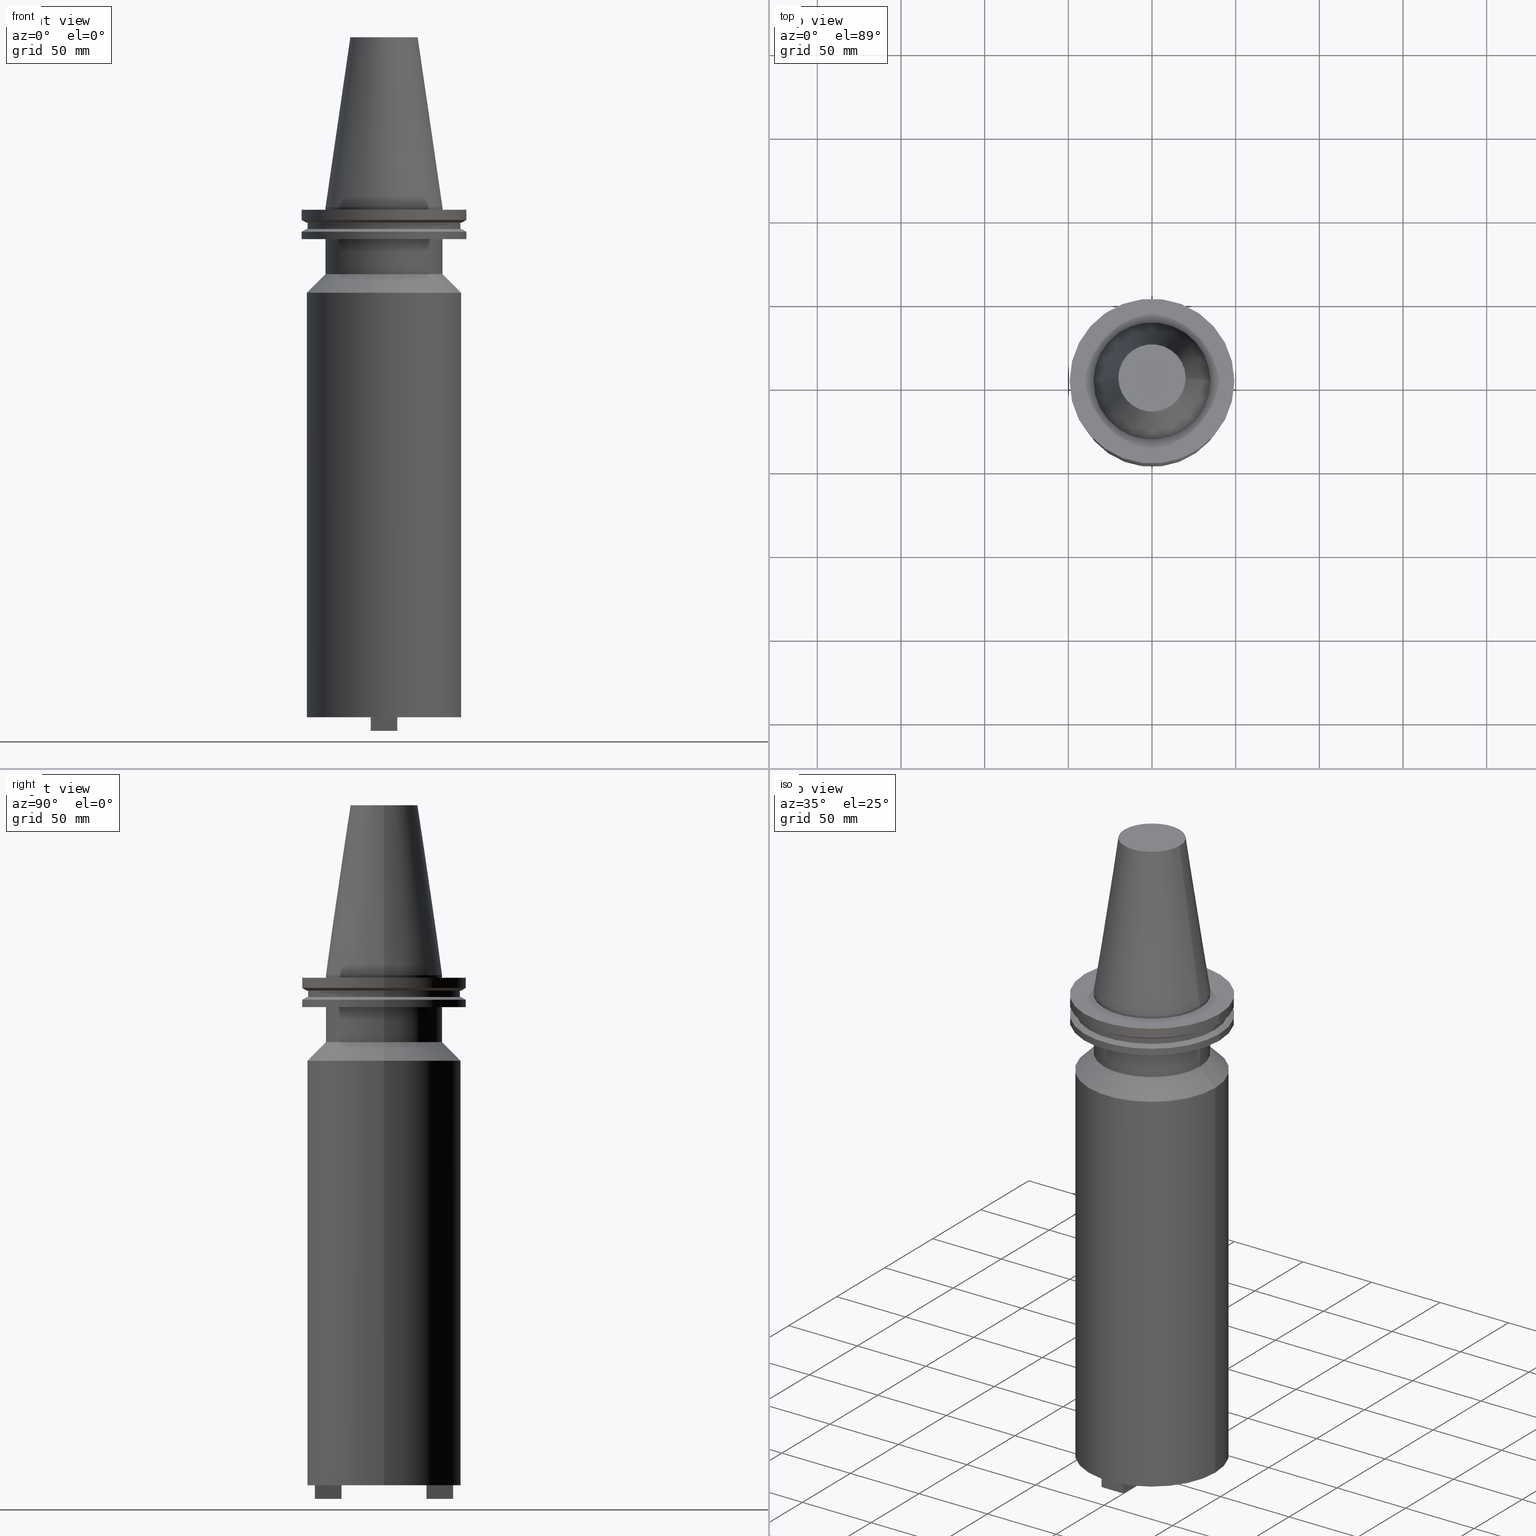
[diagram: canonical four-view strip — front | top / right | iso, engineering-drawing reading convention]
A machine part, canonical four-view strip (front | top / right | iso — engineering-drawing reading convention). The complete STEP part file that produces these views, byte-faithful:
ISO-10303-21;
HEADER;
FILE_DESCRIPTION (( 'STEP AP203' ),
    '1' );
FILE_NAME ('BCV50-SMC1_500-12.stp',
    '2022-03-03T20:18:55',
    ( '' ),
    ( '' ),
    'SwSTEP 2.0',
    'SolidWorks 2021',
    '' );
FILE_SCHEMA (( 'CONFIG_CONTROL_DESIGN' ));
ENDSEC;

DATA;
#1 = ORIENTED_EDGE ( 'NONE', *, *, #1065, .T. ) ;
#2 = CARTESIAN_POINT ( 'NONE',  ( 34.92499999999999005, 4.277078946022130098E-15, 0.000000000000000000 ) ) ;
#3 = ORIENTED_EDGE ( 'NONE', *, *, #761, .F. ) ;
#4 = LINE ( 'NONE', #669, #239 ) ;
#5 = VECTOR ( 'NONE', #179, 1000.000000000000000 ) ;
#6 = CONICAL_SURFACE ( 'NONE', #745, 34.92499999999999005, 0.1448138465474119452 ) ;
#7 = ADVANCED_FACE ( 'NONE', ( #333 ), #830, .T. ) ;
#8 = CARTESIAN_POINT ( 'NONE',  ( -49.21499999999998920, 0.000000000000000000, -14.65761014474876944 ) ) ;
#9 = ORIENTED_EDGE ( 'NONE', *, *, #782, .F. ) ;
#10 = VECTOR ( 'NONE', #201, 1000.000000000000000 ) ;
#11 = DIRECTION ( 'NONE',  ( -0.000000000000000000, -0.000000000000000000, 1.000000000000000000 ) ) ;
#12 = AXIS2_PLACEMENT_3D ( 'NONE', #129, #477, #794 ) ;
#13 = ORIENTED_EDGE ( 'NONE', *, *, #582, .F. ) ;
#14 = LINE ( 'NONE', #520, #305 ) ;
#15 = CARTESIAN_POINT ( 'NONE',  ( 0.000000000000000000, 0.000000000000000000, -13.05499999999999794 ) ) ;
#16 = EDGE_CURVE ( 'NONE', #1056, #671, #598, .T. ) ;
#17 = COORDINATED_UNIVERSAL_TIME_OFFSET ( 6, 0, .BEHIND. ) ;
#18 = LINE ( 'NONE', #296, #741 ) ;
#19 = ORIENTED_EDGE ( 'NONE', *, *, #666, .T. ) ;
#20 = DIRECTION ( 'NONE',  ( -0.000000000000000000, -0.000000000000000000, 1.000000000000000000 ) ) ;
#21 = EDGE_LOOP ( 'NONE', ( #953, #910, #813, #388 ) ) ;
#22 = FACE_OUTER_BOUND ( 'NONE', #537, .T. ) ;
#23 = COORDINATED_UNIVERSAL_TIME_OFFSET ( 6, 0, .BEHIND. ) ;
#24 = DIRECTION ( 'NONE',  ( -0.000000000000000000, -0.000000000000000000, 1.000000000000000000 ) ) ;
#25 = AXIS2_PLACEMENT_3D ( 'NONE', #120, #467, #806 ) ;
#26 = CARTESIAN_POINT ( 'NONE',  ( -1.803762848572357623E-14, 41.27999999999998693, -312.8800000000000523 ) ) ;
#27 = ORIENTED_EDGE ( 'NONE', *, *, #798, .F. ) ;
#28 = AXIS2_PLACEMENT_3D ( 'NONE', #870, #454, #788 ) ;
#29 = CARTESIAN_POINT ( 'NONE',  ( -46.04999999999999716, 0.000000000000000000, -51.12499999999995026 ) ) ;
#30 = CARTESIAN_POINT ( 'NONE',  ( -1.109873458181633997E-14, -25.39999999999998792, -312.8800000000000523 ) ) ;
#31 = EDGE_LOOP ( 'NONE', ( #913, #227, #811, #593 ) ) ;
#32 = CARTESIAN_POINT ( 'NONE',  ( 0.000000000000000000, 0.000000000000000000, 101.5999999999999943 ) ) ;
#33 = ORIENTED_EDGE ( 'NONE', *, *, #458, .F. ) ;
#34 = VECTOR ( 'NONE', #269, 1000.000000000000000 ) ;
#35 = SECURITY_CLASSIFICATION ( '', '', #597 ) ;
#36 = CARTESIAN_POINT ( 'NONE',  ( -7.940000000000012825, 8.673617379884053221E-16, -312.8800000000000523 ) ) ;
#37 = VERTEX_POINT ( 'NONE', #684 ) ;
#38 = CARTESIAN_POINT ( 'NONE',  ( -7.940000000000009273, 25.39999999999998792, -312.8800000000000523 ) ) ;
#39 = EDGE_CURVE ( 'NONE', #89, #678, #846, .T. ) ;
#40 = ADVANCED_FACE ( 'NONE', ( #422 ), #1010, .F. ) ;
#41 = DIRECTION ( 'NONE',  ( -0.000000000000000000, -0.000000000000000000, 1.000000000000000000 ) ) ;
#42 = ORIENTED_EDGE ( 'NONE', *, *, #689, .T. ) ;
#43 = DIRECTION ( 'NONE',  ( 1.000000000000000000, 0.000000000000000000, 0.000000000000000000 ) ) ;
#44 = CONICAL_SURFACE ( 'NONE', #547, 49.21499999999998920, 1.047197551196554333 ) ;
#45 = ORIENTED_EDGE ( 'NONE', *, *, #710, .T. ) ;
#46 = DIRECTION ( 'NONE',  ( 1.000000000000000000, 0.000000000000000000, 0.000000000000000000 ) ) ;
#47 = CIRCLE ( 'NONE', #1095, 34.92499999999999716 ) ;
#48 = AXIS2_PLACEMENT_3D ( 'NONE', #81, #1104, #611 ) ;
#49 = DIRECTION ( 'NONE',  ( 1.000000000000000000, 0.000000000000000000, 0.000000000000000000 ) ) ;
#50 = ORIENTED_EDGE ( 'NONE', *, *, #726, .T. ) ;
#51 = EDGE_CURVE ( 'NONE', #569, #734, #111, .T. ) ;
#52 = CARTESIAN_POINT ( 'NONE',  ( 7.939999999999990621, -41.28000000000000114, -304.8000000000000682 ) ) ;
#53 = PERSON_AND_ORGANIZATION_ROLE ( 'creator' ) ;
#54 = EDGE_LOOP ( 'NONE', ( #636, #457, #606, #436 ) ) ;
#55 = DIRECTION ( 'NONE',  ( 1.000000000000000000, 0.000000000000000000, 0.000000000000000000 ) ) ;
#56 = LINE ( 'NONE', #662, #616 ) ;
#57 = DESIGN_CONTEXT ( 'detailed design', #406, 'design' ) ;
#58 = VERTEX_POINT ( 'NONE', #932 ) ;
#59 = CARTESIAN_POINT ( 'NONE',  ( -49.21499999999999631, 6.027099222003697826E-15, -1.499999999999987566 ) ) ;
#60 = DIRECTION ( 'NONE',  ( 0.000000000000000000, 0.000000000000000000, -1.000000000000000000 ) ) ;
#61 = VECTOR ( 'NONE', #1002, 1000.000000000000000 ) ;
#62 = PERSON_AND_ORGANIZATION_ROLE ( 'design_owner' ) ;
#63 = DIRECTION ( 'NONE',  ( 0.000000000000000000, 0.000000000000000000, -1.000000000000000000 ) ) ;
#64 = LINE ( 'NONE', #229, #945 ) ;
#65 = ADVANCED_FACE ( 'NONE', ( #1103 ), #504, .F. ) ;
#66 = PLANE ( 'NONE',  #409 ) ;
#67 = APPLICATION_PROTOCOL_DEFINITION ( 'international standard', 'config_control_design', 1994, #571 ) ;
#68 = EDGE_CURVE ( 'NONE', #1015, #441, #327, .T. ) ;
#69 = DIRECTION ( 'NONE',  ( 0.8660254037844273833, 0.000000000000000000, 0.5000000000000195399 ) ) ;
#70 = EDGE_LOOP ( 'NONE', ( #384, #519, #128, #956 ) ) ;
#71 = ORIENTED_EDGE ( 'NONE', *, *, #771, .F. ) ;
#72 = DIRECTION ( 'NONE',  ( -0.000000000000000000, -0.000000000000000000, 1.000000000000000000 ) ) ;
#73 = CARTESIAN_POINT ( 'NONE',  ( 0.000000000000000000, 49.21499999999999631, -1.499999999999992895 ) ) ;
#74 = DIRECTION ( 'NONE',  ( -0.000000000000000000, -0.000000000000000000, 1.000000000000000000 ) ) ;
#75 = ORIENTED_EDGE ( 'NONE', *, *, #786, .F. ) ;
#76 = DIRECTION ( 'NONE',  ( 0.000000000000000000, 0.000000000000000000, -1.000000000000000000 ) ) ;
#77 = CONICAL_SURFACE ( 'NONE', #802, 46.43919780457007818, 1.047197551196575205 ) ;
#78 = AXIS2_PLACEMENT_3D ( 'NONE', #679, #76, #524 ) ;
#79 = CARTESIAN_POINT ( 'NONE',  ( -34.92499999999999716, 4.277078946022130887E-15, 101.5999999999999943 ) ) ;
#80 = ORIENTED_EDGE ( 'NONE', *, *, #322, .T. ) ;
#81 = CARTESIAN_POINT ( 'NONE',  ( 0.000000000000000000, 0.000000000000000000, -14.65761014474876944 ) ) ;
#82 = EDGE_LOOP ( 'NONE', ( #334, #204, #75, #854 ) ) ;
#83 = DIRECTION ( 'NONE',  ( 1.000000000000000000, 0.000000000000000000, 0.000000000000000000 ) ) ;
#84 = ADVANCED_FACE ( 'NONE', ( #429 ), #150, .T. ) ;
#85 = DIRECTION ( 'NONE',  ( 1.000000000000000000, 0.000000000000000000, 0.000000000000000000 ) ) ;
#86 = DATE_AND_TIME ( #1042, #240 ) ;
#87 = EDGE_LOOP ( 'NONE', ( #1006, #556 ) ) ;
#88 = CARTESIAN_POINT ( 'NONE',  ( 0.000000000000000000, 0.000000000000000000, -19.04999999999999716 ) ) ;
#89 = VERTEX_POINT ( 'NONE', #943 ) ;
#90 = DIRECTION ( 'NONE',  ( 1.000000000000000000, 0.000000000000000000, 0.000000000000000000 ) ) ;
#91 = DIRECTION ( 'NONE',  ( -0.000000000000000000, -0.000000000000000000, 1.000000000000000000 ) ) ;
#92 = CARTESIAN_POINT ( 'NONE',  ( 49.21499999999998920, 0.000000000000000000, -14.65761014474876944 ) ) ;
#93 = ORIENTED_EDGE ( 'NONE', *, *, #914, .F. ) ;
#94 = CARTESIAN_POINT ( 'NONE',  ( 0.000000000000000000, 0.000000000000000000, -304.8000000000000114 ) ) ;
#95 = CLOSED_SHELL ( 'NONE', ( #7, #826, #413, #84, #586, #901, #989, #106, #1032, #96, #484, #880, #399, #986, #443, #730, #988, #699, #674, #471, #718, #235, #370, #902, #404, #639, #562, #790, #472, #245, #920, #65, #839, #386, #966, #1009, #116, #40, #1073 ) ) ;
#96 = ADVANCED_FACE ( 'NONE', ( #517 ), #604, .T. ) ;
#97 = DIRECTION ( 'NONE',  ( 0.000000000000000000, -0.000000000000000000, 1.000000000000000000 ) ) ;
#98 = CARTESIAN_POINT ( 'NONE',  ( 0.000000000000000000, 0.000000000000000000, -1.499999999999987566 ) ) ;
#99 = ORIENTED_EDGE ( 'NONE', *, *, #553, .T. ) ;
#100 = AXIS2_PLACEMENT_3D ( 'NONE', #765, #176, #271 ) ;
#101 = DIRECTION ( 'NONE',  ( 1.000000000000000000, 0.000000000000000000, 0.000000000000000000 ) ) ;
#102 = CC_DESIGN_APPROVAL ( #884, ( #149 ) ) ;
#103 = ORIENTED_EDGE ( 'NONE', *, *, #130, .T. ) ;
#104 = DIRECTION ( 'NONE',  ( 0.000000000000000000, 1.000000000000000000, 0.000000000000000000 ) ) ;
#105 = CARTESIAN_POINT ( 'NONE',  ( 7.939999999999994174, -25.39999999999999147, -312.8800000000000523 ) ) ;
#106 = ADVANCED_FACE ( 'NONE', ( #752 ), #44, .T. ) ;
#107 = ORIENTED_EDGE ( 'NONE', *, *, #287, .T. ) ;
#108 = DIRECTION ( 'NONE',  ( -1.000000000000000000, 4.369580544022182747E-16, 0.000000000000000000 ) ) ;
#109 = LINE ( 'NONE', #732, #1098 ) ;
#110 = ORIENTED_EDGE ( 'NONE', *, *, #478, .F. ) ;
#111 = CIRCLE ( 'NONE', #1027, 46.43919780457007818 ) ;
#112 = DIRECTION ( 'NONE',  ( 1.000000000000000000, 0.000000000000000000, 0.000000000000000000 ) ) ;
#113 = VERTEX_POINT ( 'NONE', #747 ) ;
#114 = VECTOR ( 'NONE', #290, 1000.000000000000000 ) ;
#115 = DIRECTION ( 'NONE',  ( -0.000000000000000000, -0.000000000000000000, 1.000000000000000000 ) ) ;
#116 = ADVANCED_FACE ( 'NONE', ( #1085 ), #796, .F. ) ;
#117 = ORIENTED_EDGE ( 'NONE', *, *, #1029, .T. ) ;
#118 = AXIS2_PLACEMENT_3D ( 'NONE', #219, #1074, #661 ) ;
#119 = EDGE_CURVE ( 'NONE', #671, #712, #492, .T. ) ;
#120 = CARTESIAN_POINT ( 'NONE',  ( 0.000000000000000000, 0.000000000000000000, 0.000000000000000000 ) ) ;
#121 = EDGE_LOOP ( 'NONE', ( #808, #182, #835, #180 ) ) ;
#122 = DIRECTION ( 'NONE',  ( -0.000000000000000000, -0.000000000000000000, 1.000000000000000000 ) ) ;
#123 = VERTEX_POINT ( 'NONE', #463 ) ;
#124 = DIRECTION ( 'NONE',  ( 1.000000000000000000, 0.000000000000000000, 0.000000000000000000 ) ) ;
#125 = DIRECTION ( 'NONE',  ( -0.000000000000000000, -0.000000000000000000, 1.000000000000000000 ) ) ;
#126 = EDGE_LOOP ( 'NONE', ( #256, #249, #1039, #775 ) ) ;
#127 = DIRECTION ( 'NONE',  ( -0.000000000000000000, -0.000000000000000000, 1.000000000000000000 ) ) ;
#128 = ORIENTED_EDGE ( 'NONE', *, *, #266, .F. ) ;
#129 = CARTESIAN_POINT ( 'NONE',  ( 0.000000000000000000, 0.000000000000000000, 0.000000000000000000 ) ) ;
#130 = EDGE_CURVE ( 'NONE', #686, #466, #300, .T. ) ;
#131 = LINE ( 'NONE', #558, #465 ) ;
#132 = EDGE_LOOP ( 'NONE', ( #242, #797 ) ) ;
#133 = VECTOR ( 'NONE', #276, 1000.000000000000000 ) ;
#134 = DIRECTION ( 'NONE',  ( 0.000000000000000000, 0.000000000000000000, -1.000000000000000000 ) ) ;
#135 = AXIS2_PLACEMENT_3D ( 'NONE', #224, #134, #731 ) ;
#136 = ORIENTED_EDGE ( 'NONE', *, *, #233, .T. ) ;
#137 = DIRECTION ( 'NONE',  ( -0.000000000000000000, -0.000000000000000000, 1.000000000000000000 ) ) ;
#138 = DATE_TIME_ROLE ( 'creation_date' ) ;
#139 = ORIENTED_EDGE ( 'NONE', *, *, #192, .T. ) ;
#140 = CARTESIAN_POINT ( 'NONE',  ( 7.939999999999987068, 41.27999999999999403, -312.8800000000000523 ) ) ;
#141 = AXIS2_PLACEMENT_3D ( 'NONE', #231, #755, #828 ) ;
#142 = DIRECTION ( 'NONE',  ( -0.000000000000000000, -0.000000000000000000, 1.000000000000000000 ) ) ;
#143 = ORIENTED_EDGE ( 'NONE', *, *, #184, .F. ) ;
#144 = CARTESIAN_POINT ( 'NONE',  ( 45.64500000000000313, 0.000000000000000000, -13.05499999999999794 ) ) ;
#145 = VECTOR ( 'NONE', #24, 1000.000000000000000 ) ;
#146 = CYLINDRICAL_SURFACE ( 'NONE', #25, 8.729999999999998650 ) ;
#147 = AXIS2_PLACEMENT_3D ( 'NONE', #823, #653, #495 ) ;
#148 = EDGE_CURVE ( 'NONE', #367, #987, #354, .T. ) ;
#149 = PRODUCT_DEFINITION_FORMATION_WITH_SPECIFIED_SOURCE ( 'ANY', '', #641, .NOT_KNOWN. ) ;
#150 = CYLINDRICAL_SURFACE ( 'NONE', #368, 34.92499999999999005 ) ;
#151 = CC_DESIGN_PERSON_AND_ORGANIZATION_ASSIGNMENT ( #347, #178, ( #35 ) ) ;
#152 = EDGE_LOOP ( 'NONE', ( #672, #99, #45, #946 ) ) ;
#153 = FACE_OUTER_BOUND ( 'NONE', #994, .T. ) ;
#154 = DIRECTION ( 'NONE',  ( 1.000000000000000000, 0.000000000000000000, 0.000000000000000000 ) ) ;
#155 = MECHANICAL_CONTEXT ( 'NONE', #571, 'mechanical' ) ;
#156 = DIRECTION ( 'NONE',  ( -0.000000000000000000, -0.000000000000000000, 1.000000000000000000 ) ) ;
#157 = ORIENTED_EDGE ( 'NONE', *, *, #213, .T. ) ;
#158 = EDGE_LOOP ( 'NONE', ( #248, #778, #905, #1082 ) ) ;
#159 = LINE ( 'NONE', #791, #34 ) ;
#160 = DIRECTION ( 'NONE',  ( 1.000000000000000000, 0.000000000000000000, 0.000000000000000000 ) ) ;
#161 = EDGE_CURVE ( 'NONE', #822, #578, #392, .T. ) ;
#162 = EDGE_LOOP ( 'NONE', ( #71, #236 ) ) ;
#163 = CARTESIAN_POINT ( 'NONE',  ( 0.000000000000000000, 0.000000000000000000, 101.5999999999999943 ) ) ;
#164 = CC_DESIGN_APPROVAL ( #918, ( #165 ) ) ;
#165 = PRODUCT_DEFINITION ( 'UNKNOWN', '', #149, #57 ) ;
#166 = SHAPE_DEFINITION_REPRESENTATION ( #793, #937 ) ;
#167 = AXIS2_PLACEMENT_3D ( 'NONE', #642, #900, #541 ) ;
#168 = DIRECTION ( 'NONE',  ( 0.000000000000000000, 0.000000000000000000, -1.000000000000000000 ) ) ;
#169 = AXIS2_PLACEMENT_3D ( 'NONE', #26, #528, #363 ) ;
#170 = DIRECTION ( 'NONE',  ( 1.000000000000000000, 0.000000000000000000, 0.000000000000000000 ) ) ;
#171 = EDGE_LOOP ( 'NONE', ( #93, #143, #291, #378 ) ) ;
#172 = CYLINDRICAL_SURFACE ( 'NONE', #998, 49.21499999999998920 ) ;
#173 = DIRECTION ( 'NONE',  ( 1.000000000000000000, 0.000000000000000000, 0.000000000000000000 ) ) ;
#174 = DIRECTION ( 'NONE',  ( -1.000000000000000000, 0.000000000000000000, 0.000000000000000000 ) ) ;
#175 = ORIENTED_EDGE ( 'NONE', *, *, #600, .F. ) ;
#176 = DIRECTION ( 'NONE',  ( 0.000000000000000000, -0.000000000000000000, 1.000000000000000000 ) ) ;
#177 = DIRECTION ( 'NONE',  ( -0.000000000000000000, -0.000000000000000000, 1.000000000000000000 ) ) ;
#178 = PERSON_AND_ORGANIZATION_ROLE ( 'classification_officer' ) ;
#179 = DIRECTION ( 'NONE',  ( -1.000000000000000000, 0.000000000000000000, 0.000000000000000000 ) ) ;
#180 = ORIENTED_EDGE ( 'NONE', *, *, #289, .F. ) ;
#181 = CYLINDRICAL_SURFACE ( 'NONE', #320, 45.64500000000000313 ) ;
#182 = ORIENTED_EDGE ( 'NONE', *, *, #310, .T. ) ;
#183 = DIRECTION ( 'NONE',  ( -1.000000000000000000, 4.369580544022184719E-16, 0.000000000000000000 ) ) ;
#184 = EDGE_CURVE ( 'NONE', #919, #530, #859, .T. ) ;
#185 = CARTESIAN_POINT ( 'NONE',  ( -49.21499999999998920, 6.027099222003697037E-15, -14.65761014474876944 ) ) ;
#186 = EDGE_CURVE ( 'NONE', #656, #927, #202, .T. ) ;
#187 = LINE ( 'NONE', #30, #814 ) ;
#188 = DIRECTION ( 'NONE',  ( 0.000000000000000000, 0.000000000000000000, -1.000000000000000000 ) ) ;
#189 = CIRCLE ( 'NONE', #845, 46.04999999999999716 ) ;
#190 = EDGE_LOOP ( 'NONE', ( #3, #1100 ) ) ;
#191 = CYLINDRICAL_SURFACE ( 'NONE', #12, 46.04999999999999716 ) ;
#192 = EDGE_CURVE ( 'NONE', #987, #317, #789, .T. ) ;
#193 = LINE ( 'NONE', #267, #145 ) ;
#194 = ORIENTED_EDGE ( 'NONE', *, *, #800, .T. ) ;
#195 = LINE ( 'NONE', #29, #688 ) ;
#196 = CARTESIAN_POINT ( 'NONE',  ( 0.000000000000000000, 0.000000000000000000, -19.04999999999999716 ) ) ;
#197 = ORIENTED_EDGE ( 'NONE', *, *, #233, .F. ) ;
#198 = CARTESIAN_POINT ( 'NONE',  ( 0.000000000000000000, 0.000000000000000000, 0.000000000000000000 ) ) ;
#199 = EDGE_LOOP ( 'NONE', ( #27, #1037, #19, #107 ) ) ;
#200 = EDGE_CURVE ( 'NONE', #734, #461, #629, .T. ) ;
#201 = DIRECTION ( 'NONE',  ( 0.000000000000000000, 1.000000000000000000, 0.000000000000000000 ) ) ;
#202 = CIRCLE ( 'NONE', #978, 49.21499999999999631 ) ;
#203 = DIRECTION ( 'NONE',  ( 0.000000000000000000, 0.000000000000000000, -1.000000000000000000 ) ) ;
#204 = ORIENTED_EDGE ( 'NONE', *, *, #486, .T. ) ;
#205 = DIRECTION ( 'NONE',  ( 1.000000000000000000, -2.184790272011092113E-16, 0.000000000000000000 ) ) ;
#206 = EDGE_CURVE ( 'NONE', #919, #405, #187, .T. ) ;
#207 = ORIENTED_EDGE ( 'NONE', *, *, #51, .T. ) ;
#208 = CIRCLE ( 'NONE', #147, 46.43919780457007818 ) ;
#209 = CARTESIAN_POINT ( 'NONE',  ( -7.940000000000009273, -25.39999999999998437, -312.8800000000000523 ) ) ;
#210 = ORIENTED_EDGE ( 'NONE', *, *, #689, .F. ) ;
#211 = ORIENTED_EDGE ( 'NONE', *, *, #200, .F. ) ;
#212 = CARTESIAN_POINT ( 'NONE',  ( -34.92499999999999005, 0.000000000000000000, 0.000000000000000000 ) ) ;
#213 = EDGE_CURVE ( 'NONE', #466, #892, #193, .T. ) ;
#214 = CARTESIAN_POINT ( 'NONE',  ( 0.000000000000000000, 0.000000000000000000, -312.8800000000000523 ) ) ;
#215 = ORIENTED_EDGE ( 'NONE', *, *, #130, .F. ) ;
#216 = CARTESIAN_POINT ( 'NONE',  ( 7.939999999999990621, -41.27999999999999403, -312.8800000000000523 ) ) ;
#217 = AXIS2_PLACEMENT_3D ( 'NONE', #895, #369, #977 ) ;
#218 = VERTEX_POINT ( 'NONE', #460 ) ;
#219 = CARTESIAN_POINT ( 'NONE',  ( 0.000000000000000000, 0.000000000000000000, -51.12499999999995026 ) ) ;
#220 = CIRCLE ( 'NONE', #337, 34.92499999999999005 ) ;
#221 = CC_DESIGN_SECURITY_CLASSIFICATION ( #35, ( #149 ) ) ;
#222 = DATE_AND_TIME ( #226, #637 ) ;
#223 = ORIENTED_EDGE ( 'NONE', *, *, #1090, .F. ) ;
#224 = CARTESIAN_POINT ( 'NONE',  ( 0.000000000000000000, 45.64500000000000313, -13.05499999999999794 ) ) ;
#225 = CARTESIAN_POINT ( 'NONE',  ( 7.939999999999987068, 41.27999999999999403, -304.8000000000000682 ) ) ;
#226 = CALENDAR_DATE ( 2022, 3, 3 ) ;
#227 = ORIENTED_EDGE ( 'NONE', *, *, #1090, .T. ) ;
#228 = EDGE_CURVE ( 'NONE', #708, #530, #373, .T. ) ;
#229 = CARTESIAN_POINT ( 'NONE',  ( 34.92499999999999716, 0.000000000000000000, 101.5999999999999943 ) ) ;
#230 = CIRCLE ( 'NONE', #614, 34.92499999999999005 ) ;
#231 = CARTESIAN_POINT ( 'NONE',  ( 0.000000000000000000, 0.000000000000000000, -51.12499999999995026 ) ) ;
#232 = AXIS2_PLACEMENT_3D ( 'NONE', #196, #962, #695 ) ;
#233 = EDGE_CURVE ( 'NONE', #374, #1105, #972, .T. ) ;
#234 = ORIENTED_EDGE ( 'NONE', *, *, #186, .F. ) ;
#235 = ADVANCED_FACE ( 'NONE', ( #275 ), #706, .T. ) ;
#236 = ORIENTED_EDGE ( 'NONE', *, *, #1075, .F. ) ;
#237 = DIRECTION ( 'NONE',  ( -0.000000000000000000, -0.000000000000000000, 1.000000000000000000 ) ) ;
#238 = LINE ( 'NONE', #572, #1059 ) ;
#239 = VECTOR ( 'NONE', #346, 1000.000000000000000 ) ;
#240 = LOCAL_TIME ( 14, 18, 55.00000000000000000, #17 ) ;
#241 = PERSON_AND_ORGANIZATION ( #716, #650 ) ;
#242 = ORIENTED_EDGE ( 'NONE', *, *, #929, .T. ) ;
#243 = ORIENTED_EDGE ( 'NONE', *, *, #148, .T. ) ;
#244 = CARTESIAN_POINT ( 'NONE',  ( 0.000000000000000000, 0.000000000000000000, -35.00000000000000000 ) ) ;
#245 = ADVANCED_FACE ( 'NONE', ( #1052 ), #711, .T. ) ;
#246 = CARTESIAN_POINT ( 'NONE',  ( 49.21499999999998920, 0.000000000000000000, -19.04999999999999716 ) ) ;
#247 = EDGE_CURVE ( 'NONE', #714, #712, #527, .T. ) ;
#248 = ORIENTED_EDGE ( 'NONE', *, *, #516, .F. ) ;
#249 = ORIENTED_EDGE ( 'NONE', *, *, #1108, .T. ) ;
#250 = LINE ( 'NONE', #1017, #515 ) ;
#251 = FACE_BOUND ( 'NONE', #132, .T. ) ;
#252 = DATE_TIME_ROLE ( 'classification_date' ) ;
#253 = CARTESIAN_POINT ( 'NONE',  ( 0.000000000000000000, 0.000000000000000000, 101.5999999999999943 ) ) ;
#254 = DIRECTION ( 'NONE',  ( -0.000000000000000000, -0.000000000000000000, 1.000000000000000000 ) ) ;
#255 = AXIS2_PLACEMENT_3D ( 'NONE', #951, #834, #493 ) ;
#256 = ORIENTED_EDGE ( 'NONE', *, *, #502, .T. ) ;
#257 = PLANE ( 'NONE',  #849 ) ;
#258 = PLANE ( 'NONE',  #542 ) ;
#259 = VECTOR ( 'NONE', #501, 1000.000000000000000 ) ;
#260 = EDGE_CURVE ( 'NONE', #702, #367, #872, .T. ) ;
#261 = CIRCLE ( 'NONE', #704, 20.10819343178871321 ) ;
#262 = CARTESIAN_POINT ( 'NONE',  ( 46.43919780457007818, 0.000000000000000000, -9.204999999999991189 ) ) ;
#263 = CARTESIAN_POINT ( 'NONE',  ( -46.43919780457007818, 5.857130358318727293E-15, -9.204999999999991189 ) ) ;
#264 = ORIENTED_EDGE ( 'NONE', *, *, #829, .F. ) ;
#265 = FACE_OUTER_BOUND ( 'NONE', #158, .T. ) ;
#266 = EDGE_CURVE ( 'NONE', #113, #405, #18, .T. ) ;
#267 = CARTESIAN_POINT ( 'NONE',  ( 49.21499999999998920, 0.000000000000000000, 101.5999999999999943 ) ) ;
#268 = ORIENTED_EDGE ( 'NONE', *, *, #829, .T. ) ;
#269 = DIRECTION ( 'NONE',  ( -1.000000000000000000, 0.000000000000000000, 0.000000000000000000 ) ) ;
#270 = ORIENTED_EDGE ( 'NONE', *, *, #746, .T. ) ;
#271 = DIRECTION ( 'NONE',  ( 1.000000000000000000, 0.000000000000000000, 0.000000000000000000 ) ) ;
#272 = EDGE_CURVE ( 'NONE', #390, #540, #372, .T. ) ;
#273 = FACE_OUTER_BOUND ( 'NONE', #856, .T. ) ;
#274 = AXIS2_PLACEMENT_3D ( 'NONE', #896, #125, #85 ) ;
#275 = FACE_OUTER_BOUND ( 'NONE', #485, .T. ) ;
#276 = DIRECTION ( 'NONE',  ( -0.000000000000000000, -0.000000000000000000, 1.000000000000000000 ) ) ;
#277 = CC_DESIGN_PERSON_AND_ORGANIZATION_ASSIGNMENT ( #821, #53, ( #165 ) ) ;
#278 = VERTEX_POINT ( 'NONE', #930 ) ;
#279 = EDGE_CURVE ( 'NONE', #480, #841, #658, .T. ) ;
#280 = CIRCLE ( 'NONE', #1080, 34.92499999999999716 ) ;
#281 = AXIS2_PLACEMENT_3D ( 'NONE', #955, #455, #282 ) ;
#282 = DIRECTION ( 'NONE',  ( -1.092395136005546303E-16, -1.000000000000000000, 0.000000000000000000 ) ) ;
#283 = CIRCLE ( 'NONE', #816, 8.729999999999998650 ) ;
#284 = LINE ( 'NONE', #677, #133 ) ;
#285 = AXIS2_PLACEMENT_3D ( 'NONE', #32, #878, #1063 ) ;
#286 = ORIENTED_EDGE ( 'NONE', *, *, #710, .F. ) ;
#287 = EDGE_CURVE ( 'NONE', #374, #446, #1079, .T. ) ;
#288 = DIRECTION ( 'NONE',  ( 0.000000000000000000, 0.000000000000000000, -1.000000000000000000 ) ) ;
#289 = EDGE_CURVE ( 'NONE', #58, #540, #1008, .T. ) ;
#290 = DIRECTION ( 'NONE',  ( -0.000000000000000000, -0.000000000000000000, 1.000000000000000000 ) ) ;
#291 = ORIENTED_EDGE ( 'NONE', *, *, #206, .T. ) ;
#292 = DIRECTION ( 'NONE',  ( 0.8660254037844169472, 1.060575238724880168E-16, -0.5000000000000375255 ) ) ;
#293 = VECTOR ( 'NONE', #295, 1000.000000000000000 ) ;
#294 = EDGE_LOOP ( 'NONE', ( #80, #692 ) ) ;
#295 = DIRECTION ( 'NONE',  ( -0.000000000000000000, -0.000000000000000000, 1.000000000000000000 ) ) ;
#296 = CARTESIAN_POINT ( 'NONE',  ( -7.940000000000009273, 0.000000000000000000, -312.8800000000000523 ) ) ;
#297 = VECTOR ( 'NONE', #301, 1000.000000000000000 ) ;
#298 = CARTESIAN_POINT ( 'NONE',  ( -7.940000000000009273, 25.39999999999998792, -312.8800000000000523 ) ) ;
#299 = ORIENTED_EDGE ( 'NONE', *, *, #51, .F. ) ;
#300 = CIRCLE ( 'NONE', #232, 49.21499999999998920 ) ;
#301 = DIRECTION ( 'NONE',  ( 2.184790272011092360E-16, 1.000000000000000000, 0.000000000000000000 ) ) ;
#302 = EDGE_LOOP ( 'NONE', ( #50, #825, #423, #819 ) ) ;
#303 = LINE ( 'NONE', #464, #817 ) ;
#304 = ORIENTED_EDGE ( 'NONE', *, *, #1004, .F. ) ;
#305 = VECTOR ( 'NONE', #595, 1000.000000000000000 ) ;
#306 = CONICAL_SURFACE ( 'NONE', #871, 34.92499999999999005, 0.1448138465474119452 ) ;
#307 = DIRECTION ( 'NONE',  ( -0.1443082272672999988, 0.000000000000000000, -0.9895327864921755756 ) ) ;
#308 = PLANE ( 'NONE',  #907 ) ;
#309 = ORIENTED_EDGE ( 'NONE', *, *, #876, .T. ) ;
#310 = EDGE_CURVE ( 'NONE', #647, #390, #238, .T. ) ;
#311 = CARTESIAN_POINT ( 'NONE',  ( 0.000000000000000000, 0.000000000000000000, -13.05499999999999794 ) ) ;
#312 =( NAMED_UNIT ( * ) PLANE_ANGLE_UNIT ( ) SI_UNIT ( $, .RADIAN. ) );
#313 = ORIENTED_EDGE ( 'NONE', *, *, #379, .T. ) ;
#314 = VECTOR ( 'NONE', #177, 1000.000000000000000 ) ;
#315 = FACE_OUTER_BOUND ( 'NONE', #468, .T. ) ;
#316 = DIRECTION ( 'NONE',  ( 0.000000000000000000, 0.000000000000000000, 1.000000000000000000 ) ) ;
#317 = VERTEX_POINT ( 'NONE', #325 ) ;
#318 = DIRECTION ( 'NONE',  ( 1.000000000000000000, 0.000000000000000000, 0.000000000000000000 ) ) ;
#319 = AXIS2_PLACEMENT_3D ( 'NONE', #415, #915, #1086 ) ;
#320 = AXIS2_PLACEMENT_3D ( 'NONE', #691, #344, #170 ) ;
#321 = CARTESIAN_POINT ( 'NONE',  ( -46.04999999999999716, 5.639498510073560988E-15, 0.000000000000000000 ) ) ;
#322 = EDGE_CURVE ( 'NONE', #927, #656, #574, .T. ) ;
#323 = ORIENTED_EDGE ( 'NONE', *, *, #553, .F. ) ;
#324 = CARTESIAN_POINT ( 'NONE',  ( 34.92499999999999005, 0.000000000000000000, -1.499999999999987566 ) ) ;
#325 = CARTESIAN_POINT ( 'NONE',  ( -7.940000000000009273, 25.39999999999998792, -304.8000000000000682 ) ) ;
#326 = EDGE_CURVE ( 'NONE', #737, #841, #717, .T. ) ;
#327 = LINE ( 'NONE', #262, #738 ) ;
#328 = ORIENTED_EDGE ( 'NONE', *, *, #279, .T. ) ;
#329 = DIRECTION ( 'NONE',  ( 1.000000000000000000, 0.000000000000000000, 0.000000000000000000 ) ) ;
#330 = CIRCLE ( 'NONE', #1088, 46.04999999999999716 ) ;
#331 = LINE ( 'NONE', #473, #297 ) ;
#332 = EDGE_CURVE ( 'NONE', #934, #919, #331, .T. ) ;
#333 = FACE_OUTER_BOUND ( 'NONE', #767, .T. ) ;
#334 = ORIENTED_EDGE ( 'NONE', *, *, #393, .T. ) ;
#335 = PLANE ( 'NONE',  #100 ) ;
#336 = FACE_OUTER_BOUND ( 'NONE', #579, .T. ) ;
#337 = AXIS2_PLACEMENT_3D ( 'NONE', #351, #1040, #83 ) ;
#338 =( GEOMETRIC_REPRESENTATION_CONTEXT ( 3 ) GLOBAL_UNCERTAINTY_ASSIGNED_CONTEXT ( ( #625 ) ) GLOBAL_UNIT_ASSIGNED_CONTEXT ( ( #389, #312, #646 ) ) REPRESENTATION_CONTEXT ( 'NONE', 'WORKASPACE' ) );
#339 = DIRECTION ( 'NONE',  ( -0.000000000000000000, -0.000000000000000000, 1.000000000000000000 ) ) ;
#340 = CC_DESIGN_DATE_AND_TIME_ASSIGNMENT ( #853, #252, ( #35 ) ) ;
#341 = ORIENTED_EDGE ( 'NONE', *, *, #582, .T. ) ;
#342 = DIRECTION ( 'NONE',  ( -0.000000000000000000, -0.000000000000000000, 1.000000000000000000 ) ) ;
#343 = CARTESIAN_POINT ( 'NONE',  ( -45.64500000000000313, 5.589900314708094957E-15, 101.5999999999999943 ) ) ;
#344 = DIRECTION ( 'NONE',  ( -0.000000000000000000, -0.000000000000000000, 1.000000000000000000 ) ) ;
#345 = ORIENTED_EDGE ( 'NONE', *, *, #726, .F. ) ;
#346 = DIRECTION ( 'NONE',  ( -1.000000000000000000, -4.369580544022185705E-16, 0.000000000000000000 ) ) ;
#347 = PERSON_AND_ORGANIZATION ( #716, #650 ) ;
#348 = ORIENTED_EDGE ( 'NONE', *, *, #631, .T. ) ;
#349 = DIRECTION ( 'NONE',  ( -1.000000000000000000, 4.369580544022182747E-16, 0.000000000000000000 ) ) ;
#350 = ORIENTED_EDGE ( 'NONE', *, *, #750, .T. ) ;
#351 = CARTESIAN_POINT ( 'NONE',  ( 0.000000000000000000, 0.000000000000000000, 0.000000000000000000 ) ) ;
#352 = CARTESIAN_POINT ( 'NONE',  ( -7.940000000000007496, 41.27999999999998693, -304.8000000000000682 ) ) ;
#353 = AXIS2_PLACEMENT_3D ( 'NONE', #906, #928, #46 ) ;
#354 = LINE ( 'NONE', #381, #864 ) ;
#355 = FACE_OUTER_BOUND ( 'NONE', #414, .T. ) ;
#356 = EDGE_CURVE ( 'NONE', #841, #737, #330, .T. ) ;
#357 = VERTEX_POINT ( 'NONE', #984 ) ;
#358 = CARTESIAN_POINT ( 'NONE',  ( 46.04999999999999716, 5.639498510073560988E-15, -51.12499999999995026 ) ) ;
#359 = DIRECTION ( 'NONE',  ( -0.000000000000000000, -0.000000000000000000, 1.000000000000000000 ) ) ;
#360 = DIRECTION ( 'NONE',  ( 2.184790272011092360E-16, 1.000000000000000000, 0.000000000000000000 ) ) ;
#361 = EDGE_CURVE ( 'NONE', #441, #927, #56, .T. ) ;
#362 = ORIENTED_EDGE ( 'NONE', *, *, #228, .F. ) ;
#363 = DIRECTION ( 'NONE',  ( -1.000000000000000000, -4.369580544022185212E-16, 0.000000000000000000 ) ) ;
#364 = EDGE_LOOP ( 'NONE', ( #243, #940, #1070, #408 ) ) ;
#365 = CARTESIAN_POINT ( 'NONE',  ( 0.000000000000000000, 0.000000000000000000, -35.00000000000000000 ) ) ;
#366 = CARTESIAN_POINT ( 'NONE',  ( 7.939999999999990621, -41.27999999999999403, -312.8800000000000523 ) ) ;
#367 = VERTEX_POINT ( 'NONE', #225 ) ;
#368 = AXIS2_PLACEMENT_3D ( 'NONE', #253, #757, #498 ) ;
#369 = DIRECTION ( 'NONE',  ( -0.000000000000000000, -0.000000000000000000, 1.000000000000000000 ) ) ;
#370 = ADVANCED_FACE ( 'NONE', ( #387, #497 ), #66, .F. ) ;
#371 = VECTOR ( 'NONE', #804, 1000.000000000000000 ) ;
#372 = CIRCLE ( 'NONE', #563, 8.729999999999998650 ) ;
#373 = LINE ( 'NONE', #609, #777 ) ;
#374 = VERTEX_POINT ( 'NONE', #425 ) ;
#375 = CIRCLE ( 'NONE', #890, 45.64500000000000313 ) ;
#376 = CARTESIAN_POINT ( 'NONE',  ( -49.21500000000000341, 6.027099222003699404E-15, -7.602389855251287187 ) ) ;
#377 = AXIS2_PLACEMENT_3D ( 'NONE', #445, #1047, #763 ) ;
#378 = ORIENTED_EDGE ( 'NONE', *, *, #1096, .T. ) ;
#379 = EDGE_CURVE ( 'NONE', #58, #647, #976, .T. ) ;
#380 = DIRECTION ( 'NONE',  ( 0.000000000000000000, -0.000000000000000000, 1.000000000000000000 ) ) ;
#381 = CARTESIAN_POINT ( 'NONE',  ( 7.939999999999995950, 1.734723475976805714E-15, -304.8000000000000682 ) ) ;
#382 = ORIENTED_EDGE ( 'NONE', *, *, #200, .T. ) ;
#383 = LINE ( 'NONE', #638, #623 ) ;
#384 = ORIENTED_EDGE ( 'NONE', *, *, #525, .T. ) ;
#385 = CARTESIAN_POINT ( 'NONE',  ( -7.940000000000012825, 8.673617379884053221E-16, -304.8000000000000682 ) ) ;
#386 = ADVANCED_FACE ( 'NONE', ( #1094 ), #916, .T. ) ;
#387 = FACE_BOUND ( 'NONE', #87, .T. ) ;
#388 = ORIENTED_EDGE ( 'NONE', *, *, #761, .T. ) ;
#389 =( LENGTH_UNIT ( ) NAMED_UNIT ( * ) SI_UNIT ( .MILLI., .METRE. ) );
#390 = VERTEX_POINT ( 'NONE', #554 ) ;
#391 = LINE ( 'NONE', #724, #10 ) ;
#392 = CIRCLE ( 'NONE', #682, 34.92499999999999005 ) ;
#393 = EDGE_CURVE ( 'NONE', #578, #822, #230, .T. ) ;
#394 = AXIS2_PLACEMENT_3D ( 'NONE', #535, #1036, #112 ) ;
#395 = PLANE ( 'NONE',  #909 ) ;
#396 = VECTOR ( 'NONE', #1087, 1000.000000000000000 ) ;
#397 = ORIENTED_EDGE ( 'NONE', *, *, #68, .F. ) ;
#398 = CIRCLE ( 'NONE', #565, 46.04999999999999716 ) ;
#399 = ADVANCED_FACE ( 'NONE', ( #336 ), #922, .F. ) ;
#400 = CC_DESIGN_APPROVAL ( #1077, ( #35 ) ) ;
#401 = PLANE ( 'NONE',  #135 ) ;
#402 = CC_DESIGN_PERSON_AND_ORGANIZATION_ASSIGNMENT ( #592, #858, ( #149 ) ) ;
#403 = LINE ( 'NONE', #298, #670 ) ;
#404 = ADVANCED_FACE ( 'NONE', ( #891 ), #146, .F. ) ;
#405 = VERTEX_POINT ( 'NONE', #209 ) ;
#406 = APPLICATION_CONTEXT ( 'configuration controlled 3d designs of mechanical parts and assemblies' ) ;
#407 = DIRECTION ( 'NONE',  ( -0.000000000000000000, -0.000000000000000000, 1.000000000000000000 ) ) ;
#408 = ORIENTED_EDGE ( 'NONE', *, *, #260, .T. ) ;
#409 = AXIS2_PLACEMENT_3D ( 'NONE', #73, #420, #491 ) ;
#410 = EDGE_CURVE ( 'NONE', #892, #461, #751, .T. ) ;
#411 = FACE_OUTER_BOUND ( 'NONE', #54, .T. ) ;
#412 = DIRECTION ( 'NONE',  ( -0.000000000000000000, -0.000000000000000000, 1.000000000000000000 ) ) ;
#413 = ADVANCED_FACE ( 'NONE', ( #608 ), #615, .F. ) ;
#414 = EDGE_LOOP ( 'NONE', ( #634, #1011, #9, #805 ) ) ;
#415 = CARTESIAN_POINT ( 'NONE',  ( 0.000000000000000000, 0.000000000000000000, 101.5999999999999801 ) ) ;
#416 = CARTESIAN_POINT ( 'NONE',  ( 8.729999999999998650, 0.000000000000000000, 0.000000000000000000 ) ) ;
#417 = DIRECTION ( 'NONE',  ( 1.000000000000000000, 0.000000000000000000, 0.000000000000000000 ) ) ;
#418 = DIRECTION ( 'NONE',  ( -1.000000000000000000, 0.000000000000000000, 0.000000000000000000 ) ) ;
#419 = DIRECTION ( 'NONE',  ( 0.1443082272672999988, 1.767266086135277066E-17, -0.9895327864921755756 ) ) ;
#420 = DIRECTION ( 'NONE',  ( 0.000000000000000000, 0.000000000000000000, -1.000000000000000000 ) ) ;
#421 = APPROVAL_STATUS ( 'not_yet_approved' ) ;
#422 = FACE_OUTER_BOUND ( 'NONE', #70, .T. ) ;
#423 = ORIENTED_EDGE ( 'NONE', *, *, #746, .F. ) ;
#424 = DIRECTION ( 'NONE',  ( 0.000000000000000000, 1.000000000000000000, 0.000000000000000000 ) ) ;
#425 = CARTESIAN_POINT ( 'NONE',  ( -7.940000000000007496, 41.27999999999998693, -312.8800000000000523 ) ) ;
#426 = MANIFOLD_SOLID_BREP ( 'Boss-Extrude1', #95 ) ;
#427 = CC_DESIGN_DATE_AND_TIME_ASSIGNMENT ( #222, #138, ( #165 ) ) ;
#428 = EDGE_CURVE ( 'NONE', #113, #958, #1102, .T. ) ;
#429 = FACE_OUTER_BOUND ( 'NONE', #82, .T. ) ;
#430 = ORIENTED_EDGE ( 'NONE', *, *, #1108, .F. ) ;
#431 = VECTOR ( 'NONE', #292, 1000.000000000000114 ) ;
#432 = DIRECTION ( 'NONE',  ( -0.000000000000000000, -0.000000000000000000, 1.000000000000000000 ) ) ;
#433 = CONICAL_SURFACE ( 'NONE', #78, 46.04999999999999716, 0.7853981633974501664 ) ;
#434 = DIRECTION ( 'NONE',  ( 1.000000000000000000, -0.000000000000000000, 0.000000000000000000 ) ) ;
#435 = CARTESIAN_POINT ( 'NONE',  ( 49.21499999999999631, 0.000000000000000000, -1.499999999999987566 ) ) ;
#436 = ORIENTED_EDGE ( 'NONE', *, *, #119, .F. ) ;
#437 = FACE_BOUND ( 'NONE', #894, .T. ) ;
#438 = PERSON_AND_ORGANIZATION_ROLE ( 'design_supplier' ) ;
#439 = ORIENTED_EDGE ( 'NONE', *, *, #1069, .T. ) ;
#440 = DIRECTION ( 'NONE',  ( 1.000000000000000000, 0.000000000000000000, 0.000000000000000000 ) ) ;
#441 = VERTEX_POINT ( 'NONE', #1018 ) ;
#442 = DIRECTION ( 'NONE',  ( -0.000000000000000000, -0.000000000000000000, 1.000000000000000000 ) ) ;
#443 = ADVANCED_FACE ( 'NONE', ( #22, #251 ), #258, .F. ) ;
#444 = CARTESIAN_POINT ( 'NONE',  ( 0.000000000000000000, 0.000000000000000000, -9.204999999999991189 ) ) ;
#445 = CARTESIAN_POINT ( 'NONE',  ( -1.109873458181633997E-14, -25.39999999999998792, -312.8800000000000523 ) ) ;
#446 = VERTEX_POINT ( 'NONE', #352 ) ;
#447 = CARTESIAN_POINT ( 'NONE',  ( 46.04999999999999716, 0.000000000000000000, 0.000000000000000000 ) ) ;
#448 = AXIS2_PLACEMENT_3D ( 'NONE', #500, #1071, #55 ) ;
#449 = LOCAL_TIME ( 14, 18, 55.00000000000000000, #23 ) ;
#450 = CARTESIAN_POINT ( 'NONE',  ( 45.64500000000000313, 0.000000000000000000, 101.5999999999999943 ) ) ;
#451 = ORIENTED_EDGE ( 'NONE', *, *, #800, .F. ) ;
#452 = CARTESIAN_POINT ( 'NONE',  ( -34.92499999999999005, 0.000000000000000000, 0.000000000000000000 ) ) ;
#453 = EDGE_LOOP ( 'NONE', ( #197, #470, #659, #309 ) ) ;
#454 = DIRECTION ( 'NONE',  ( 0.000000000000000000, -0.000000000000000000, 1.000000000000000000 ) ) ;
#455 = DIRECTION ( 'NONE',  ( -1.000000000000000000, 1.092395136005546303E-16, 0.000000000000000000 ) ) ;
#456 = PLANE ( 'NONE',  #169 ) ;
#457 = ORIENTED_EDGE ( 'NONE', *, *, #596, .T. ) ;
#458 = EDGE_CURVE ( 'NONE', #714, #1056, #617, .T. ) ;
#459 = CARTESIAN_POINT ( 'NONE',  ( 7.939999999999994174, -25.39999999999999147, -304.8000000000000682 ) ) ;
#460 = CARTESIAN_POINT ( 'NONE',  ( 20.10819343178871321, 3.369811209154858606E-15, 101.5999999999999801 ) ) ;
#461 = VERTEX_POINT ( 'NONE', #185 ) ;
#462 = VECTOR ( 'NONE', #1055, 1000.000000000000000 ) ;
#463 = CARTESIAN_POINT ( 'NONE',  ( 46.04999999999999716, 0.000000000000000000, -304.8000000000000682 ) ) ;
#464 = CARTESIAN_POINT ( 'NONE',  ( -49.21499999999998920, 6.027099222003697037E-15, 101.5999999999999943 ) ) ;
#465 = VECTOR ( 'NONE', #713, 1000.000000000000000 ) ;
#466 = VERTEX_POINT ( 'NONE', #246 ) ;
#467 = DIRECTION ( 'NONE',  ( -0.000000000000000000, -0.000000000000000000, 1.000000000000000000 ) ) ;
#468 = EDGE_LOOP ( 'NONE', ( #933, #323, #573, #886 ) ) ;
#469 = DIRECTION ( 'NONE',  ( -0.000000000000000000, -0.000000000000000000, 1.000000000000000000 ) ) ;
#470 = ORIENTED_EDGE ( 'NONE', *, *, #666, .F. ) ;
#471 = ADVANCED_FACE ( 'NONE', ( #273, #960 ), #532, .F. ) ;
#472 = ADVANCED_FACE ( 'NONE', ( #591 ), #508, .F. ) ;
#473 = CARTESIAN_POINT ( 'NONE',  ( 7.939999999999999503, -1.734723475976807094E-15, -312.8800000000000523 ) ) ;
#474 = EDGE_LOOP ( 'NONE', ( #753, #1048, #1062, #620 ) ) ;
#475 = LINE ( 'NONE', #903, #371 ) ;
#476 = EDGE_LOOP ( 'NONE', ( #139, #1058, #640, #439 ) ) ;
#477 = DIRECTION ( 'NONE',  ( -0.000000000000000000, -0.000000000000000000, 1.000000000000000000 ) ) ;
#478 = EDGE_CURVE ( 'NONE', #446, #317, #815, .T. ) ;
#479 = CARTESIAN_POINT ( 'NONE',  ( 49.21499999999998920, 6.027099222003697037E-15, -14.65761014474876944 ) ) ;
#480 = VERTEX_POINT ( 'NONE', #715 ) ;
#481 = CIRCLE ( 'NONE', #319, 20.10819343178871321 ) ;
#482 = AXIS2_PLACEMENT_3D ( 'NONE', #736, #316, #417 ) ;
#483 = CARTESIAN_POINT ( 'NONE',  ( 0.000000000000000000, 0.000000000000000000, -9.204999999999991189 ) ) ;
#484 = ADVANCED_FACE ( 'NONE', ( #1060 ), #6, .T. ) ;
#485 = EDGE_LOOP ( 'NONE', ( #430, #194, #1072, #234 ) ) ;
#486 = EDGE_CURVE ( 'NONE', #822, #888, #552, .T. ) ;
#487 = LINE ( 'NONE', #1083, #494 ) ;
#488 = COORDINATED_UNIVERSAL_TIME_OFFSET ( 6, 0, .BEHIND. ) ;
#489 = ORIENTED_EDGE ( 'NONE', *, *, #206, .F. ) ;
#490 = LINE ( 'NONE', #216, #61 ) ;
#491 = DIRECTION ( 'NONE',  ( -1.000000000000000000, 0.000000000000000000, -0.000000000000000000 ) ) ;
#492 = CIRCLE ( 'NONE', #663, 45.64500000000000313 ) ;
#493 = DIRECTION ( 'NONE',  ( 1.000000000000000000, 0.000000000000000000, 0.000000000000000000 ) ) ;
#494 = VECTOR ( 'NONE', #743, 1000.000000000000000 ) ;
#495 = DIRECTION ( 'NONE',  ( 1.000000000000000000, 0.000000000000000000, 0.000000000000000000 ) ) ;
#496 = AXIS2_PLACEMENT_3D ( 'NONE', #575, #921, #857 ) ;
#497 = FACE_OUTER_BOUND ( 'NONE', #294, .T. ) ;
#498 = DIRECTION ( 'NONE',  ( 1.000000000000000000, 0.000000000000000000, 0.000000000000000000 ) ) ;
#499 = EDGE_LOOP ( 'NONE', ( #223, #103, #157, #210 ) ) ;
#500 = CARTESIAN_POINT ( 'NONE',  ( 0.000000000000000000, 0.000000000000000000, 101.5999999999999943 ) ) ;
#501 = DIRECTION ( 'NONE',  ( -0.000000000000000000, -0.000000000000000000, 1.000000000000000000 ) ) ;
#502 = EDGE_CURVE ( 'NONE', #441, #1020, #990, .T. ) ;
#503 = APPLICATION_PROTOCOL_DEFINITION ( 'international standard', 'config_control_design', 1994, #406 ) ;
#504 = PLANE ( 'NONE',  #827 ) ;
#505 = AXIS2_PLACEMENT_3D ( 'NONE', #1084, #60, #635 ) ;
#506 = ORIENTED_EDGE ( 'NONE', *, *, #1000, .T. ) ;
#507 = CARTESIAN_POINT ( 'NONE',  ( 0.000000000000000000, 25.39999999999998792, -312.8800000000000523 ) ) ;
#508 = PLANE ( 'NONE',  #795 ) ;
#509 = AXIS2_PLACEMENT_3D ( 'NONE', #15, #359, #694 ) ;
#510 = CARTESIAN_POINT ( 'NONE',  ( 0.000000000000000000, 0.000000000000000000, 0.000000000000000000 ) ) ;
#511 = DIRECTION ( 'NONE',  ( 1.000000000000000000, 0.000000000000000000, 0.000000000000000000 ) ) ;
#512 = EDGE_LOOP ( 'NONE', ( #601, #564, #382, #42 ) ) ;
#513 = AXIS2_PLACEMENT_3D ( 'NONE', #818, #122, #49 ) ;
#514 = DIRECTION ( 'NONE',  ( -0.000000000000000000, -0.000000000000000000, 1.000000000000000000 ) ) ;
#515 = VECTOR ( 'NONE', #754, 1000.000000000000000 ) ;
#516 = EDGE_CURVE ( 'NONE', #357, #89, #47, .T. ) ;
#517 = FACE_OUTER_BOUND ( 'NONE', #992, .T. ) ;
#518 = CARTESIAN_POINT ( 'NONE',  ( 0.000000000000000000, 0.000000000000000000, 101.5999999999999943 ) ) ;
#519 = ORIENTED_EDGE ( 'NONE', *, *, #1096, .F. ) ;
#520 = CARTESIAN_POINT ( 'NONE',  ( 7.939999999999995950, 1.734723475976805714E-15, -312.8800000000000523 ) ) ;
#521 = CARTESIAN_POINT ( 'NONE',  ( -1.803762848572357308E-14, -41.27999999999998693, -312.8800000000000523 ) ) ;
#522 = CARTESIAN_POINT ( 'NONE',  ( -7.940000000000009273, -41.27999999999999403, -304.8000000000000682 ) ) ;
#523 = EDGE_LOOP ( 'NONE', ( #787, #792, #350, #762 ) ) ;
#524 = DIRECTION ( 'NONE',  ( -1.000000000000000000, 0.000000000000000000, 0.000000000000000000 ) ) ;
#525 = EDGE_CURVE ( 'NONE', #958, #1076, #391, .T. ) ;
#526 = APPROVAL_ROLE ( '' ) ;
#527 = LINE ( 'NONE', #450, #462 ) ;
#528 = DIRECTION ( 'NONE',  ( -4.369580544022185212E-16, 1.000000000000000000, 0.000000000000000000 ) ) ;
#529 = VECTOR ( 'NONE', #339, 1000.000000000000000 ) ;
#530 = VERTEX_POINT ( 'NONE', #459 ) ;
#531 = EDGE_CURVE ( 'NONE', #278, #888, #1066, .T. ) ;
#532 = PLANE ( 'NONE',  #28 ) ;
#533 = AXIS2_PLACEMENT_3D ( 'NONE', #820, #583, #318 ) ;
#534 = APPROVAL_ROLE ( '' ) ;
#535 = CARTESIAN_POINT ( 'NONE',  ( 0.000000000000000000, 0.000000000000000000, 101.5999999999999943 ) ) ;
#536 = CARTESIAN_POINT ( 'NONE',  ( 0.000000000000000000, 0.000000000000000000, 0.000000000000000000 ) ) ;
#537 = EDGE_LOOP ( 'NONE', ( #1092, #215 ) ) ;
#538 = FACE_OUTER_BOUND ( 'NONE', #523, .T. ) ;
#539 = DIRECTION ( 'NONE',  ( 2.184790272011091620E-16, -1.000000000000000000, 0.000000000000000000 ) ) ;
#540 = VERTEX_POINT ( 'NONE', #889 ) ;
#541 = DIRECTION ( 'NONE',  ( 1.000000000000000000, 0.000000000000000000, 0.000000000000000000 ) ) ;
#542 = AXIS2_PLACEMENT_3D ( 'NONE', #949, #97, #173 ) ;
#543 = DIRECTION ( 'NONE',  ( -1.092395136005546426E-16, -1.000000000000000000, 0.000000000000000000 ) ) ;
#544 = EDGE_LOOP ( 'NONE', ( #769, #964, #644, #506 ) ) ;
#545 = DIRECTION ( 'NONE',  ( 2.184790272011092113E-16, 1.000000000000000000, 0.000000000000000000 ) ) ;
#546 = ORIENTED_EDGE ( 'NONE', *, *, #929, .F. ) ;
#547 = AXIS2_PLACEMENT_3D ( 'NONE', #665, #63, #418 ) ;
#548 = DIRECTION ( 'NONE',  ( -1.000000000000000000, 0.000000000000000000, -0.000000000000000000 ) ) ;
#549 = VECTOR ( 'NONE', #183, 1000.000000000000000 ) ;
#550 = DIRECTION ( 'NONE',  ( 1.000000000000000000, 0.000000000000000000, 0.000000000000000000 ) ) ;
#551 = ORIENTED_EDGE ( 'NONE', *, *, #332, .T. ) ;
#552 = LINE ( 'NONE', #967, #293 ) ;
#553 = EDGE_CURVE ( 'NONE', #89, #357, #622, .T. ) ;
#554 = CARTESIAN_POINT ( 'NONE',  ( -8.729999999999998650, 1.069116655655639177E-15, -35.00000000000000000 ) ) ;
#555 = EDGE_LOOP ( 'NONE', ( #1054, #627 ) ) ;
#556 = ORIENTED_EDGE ( 'NONE', *, *, #161, .F. ) ;
#557 = DIRECTION ( 'NONE',  ( -0.000000000000000000, -0.000000000000000000, 1.000000000000000000 ) ) ;
#558 = CARTESIAN_POINT ( 'NONE',  ( -46.43919780457007818, 5.687161494633754392E-15, -9.204999999999991189 ) ) ;
#559 = EDGE_LOOP ( 'NONE', ( #299, #117, #868, #211 ) ) ;
#560 = CARTESIAN_POINT ( 'NONE',  ( -8.730000000000009308, 1.069116655655640360E-15, -304.8000000000000114 ) ) ;
#561 = CONICAL_SURFACE ( 'NONE', #48, 49.21499999999998920, 1.047197551196554333 ) ;
#562 = ADVANCED_FACE ( 'NONE', ( #538 ), #191, .T. ) ;
#563 = AXIS2_PLACEMENT_3D ( 'NONE', #365, #700, #1013 ) ;
#564 = ORIENTED_EDGE ( 'NONE', *, *, #1107, .F. ) ;
#565 = AXIS2_PLACEMENT_3D ( 'NONE', #954, #693, #851 ) ;
#566 = AXIS2_PLACEMENT_3D ( 'NONE', #518, #873, #101 ) ;
#567 = CYLINDRICAL_SURFACE ( 'NONE', #448, 49.21499999999999631 ) ;
#568 = EDGE_CURVE ( 'NONE', #89, #841, #195, .T. ) ;
#569 = VERTEX_POINT ( 'NONE', #875 ) ;
#570 = FACE_OUTER_BOUND ( 'NONE', #126, .T. ) ;
#571 = APPLICATION_CONTEXT ( 'configuration controlled 3d designs of mechanical parts and assemblies' ) ;
#572 = CARTESIAN_POINT ( 'NONE',  ( -8.729999999999998650, 1.069116655655639177E-15, 0.000000000000000000 ) ) ;
#573 = ORIENTED_EDGE ( 'NONE', *, *, #568, .T. ) ;
#574 = CIRCLE ( 'NONE', #809, 49.21499999999999631 ) ;
#575 = CARTESIAN_POINT ( 'NONE',  ( 0.000000000000000000, 0.000000000000000000, -9.204999999999991189 ) ) ;
#576 = DIRECTION ( 'NONE',  ( 1.000000000000000000, 0.000000000000000000, 0.000000000000000000 ) ) ;
#577 = VECTOR ( 'NONE', #156, 1000.000000000000000 ) ;
#578 = VERTEX_POINT ( 'NONE', #324 ) ;
#579 = EDGE_LOOP ( 'NONE', ( #722, #268 ) ) ;
#580 = CIRCLE ( 'NONE', #667, 46.43919780457007818 ) ;
#581 = ORIENTED_EDGE ( 'NONE', *, *, #287, .F. ) ;
#582 = EDGE_CURVE ( 'NONE', #879, #1015, #208, .T. ) ;
#583 = DIRECTION ( 'NONE',  ( -0.000000000000000000, -0.000000000000000000, 1.000000000000000000 ) ) ;
#584 = AXIS2_PLACEMENT_3D ( 'NONE', #198, #633, #887 ) ;
#585 = DIRECTION ( 'NONE',  ( -0.000000000000000000, -0.000000000000000000, 1.000000000000000000 ) ) ;
#586 = ADVANCED_FACE ( 'NONE', ( #570 ), #567, .T. ) ;
#587 = CARTESIAN_POINT ( 'NONE',  ( 0.000000000000000000, 0.000000000000000000, -13.05499999999999794 ) ) ;
#588 = EDGE_CURVE ( 'NONE', #278, #218, #481, .T. ) ;
#589 = EDGE_LOOP ( 'NONE', ( #348, #652, #1016, #397 ) ) ;
#590 = FACE_BOUND ( 'NONE', #850, .T. ) ;
#591 = FACE_OUTER_BOUND ( 'NONE', #190, .T. ) ;
#592 = PERSON_AND_ORGANIZATION ( #716, #650 ) ;
#593 = ORIENTED_EDGE ( 'NONE', *, *, #213, .F. ) ;
#594 = ORIENTED_EDGE ( 'NONE', *, *, #148, .F. ) ;
#595 = DIRECTION ( 'NONE',  ( 2.184790272011091620E-16, -1.000000000000000000, 0.000000000000000000 ) ) ;
#596 = EDGE_CURVE ( 'NONE', #1056, #714, #375, .T. ) ;
#597 = SECURITY_CLASSIFICATION_LEVEL ( 'unclassified' ) ;
#598 = LINE ( 'NONE', #343, #529 ) ;
#599 = FACE_OUTER_BOUND ( 'NONE', #199, .T. ) ;
#600 = EDGE_CURVE ( 'NONE', #934, #708, #490, .T. ) ;
#601 = ORIENTED_EDGE ( 'NONE', *, *, #1029, .F. ) ;
#602 = DIRECTION ( 'NONE',  ( 0.000000000000000000, -0.000000000000000000, 1.000000000000000000 ) ) ;
#603 = AXIS2_PLACEMENT_3D ( 'NONE', #779, #342, #837 ) ;
#604 = CYLINDRICAL_SURFACE ( 'NONE', #255, 34.92499999999999716 ) ;
#605 = CARTESIAN_POINT ( 'NONE',  ( 0.000000000000000000, 0.000000000000000000, -9.204999999999991189 ) ) ;
#606 = ORIENTED_EDGE ( 'NONE', *, *, #247, .T. ) ;
#607 = CARTESIAN_POINT ( 'NONE',  ( 0.000000000000000000, 0.000000000000000000, 101.5999999999999801 ) ) ;
#608 = FACE_OUTER_BOUND ( 'NONE', #121, .T. ) ;
#609 = CARTESIAN_POINT ( 'NONE',  ( 7.939999999999999503, -1.734723475976807094E-15, -304.8000000000000682 ) ) ;
#610 = ORIENTED_EDGE ( 'NONE', *, *, #332, .F. ) ;
#611 = DIRECTION ( 'NONE',  ( -1.000000000000000000, 0.000000000000000000, 0.000000000000000000 ) ) ;
#612 = EDGE_LOOP ( 'NONE', ( #264, #1045, #1001, #742 ) ) ;
#613 = DIRECTION ( 'NONE',  ( -0.000000000000000000, -0.000000000000000000, 1.000000000000000000 ) ) ;
#614 = AXIS2_PLACEMENT_3D ( 'NONE', #744, #833, #576 ) ;
#615 = CYLINDRICAL_SURFACE ( 'NONE', #938, 8.729999999999998650 ) ;
#616 = VECTOR ( 'NONE', #412, 1000.000000000000000 ) ;
#617 = CIRCLE ( 'NONE', #509, 45.64500000000000313 ) ;
#618 = DIRECTION ( 'NONE',  ( -1.000000000000000000, 4.369580544022184226E-16, 0.000000000000000000 ) ) ;
#619 = FACE_OUTER_BOUND ( 'NONE', #152, .T. ) ;
#620 = ORIENTED_EDGE ( 'NONE', *, *, #1000, .F. ) ;
#621 = VECTOR ( 'NONE', #349, 1000.000000000000000 ) ;
#622 = CIRCLE ( 'NONE', #167, 34.92499999999999716 ) ;
#623 = VECTOR ( 'NONE', #469, 1000.000000000000000 ) ;
#624 = DIRECTION ( 'NONE',  ( 4.369580544022184226E-16, 1.000000000000000000, 0.000000000000000000 ) ) ;
#625 = UNCERTAINTY_MEASURE_WITH_UNIT (LENGTH_MEASURE( 1.000000000000000082E-05 ), #389, 'distance_accuracy_value', 'NONE');
#626 = CYLINDRICAL_SURFACE ( 'NONE', #926, 34.92499999999999716 ) ;
#627 = ORIENTED_EDGE ( 'NONE', *, *, #119, .T. ) ;
#628 = CARTESIAN_POINT ( 'NONE',  ( 0.000000000000000000, 0.000000000000000000, -39.99999999999999289 ) ) ;
#629 = LINE ( 'NONE', #8, #772 ) ;
#630 = CARTESIAN_POINT ( 'NONE',  ( 7.939999999999999503, -1.734723475976807094E-15, -312.8800000000000523 ) ) ;
#631 = EDGE_CURVE ( 'NONE', #1015, #879, #580, .T. ) ;
#632 = CARTESIAN_POINT ( 'NONE',  ( 7.939999999999994174, -25.39999999999999147, -312.8800000000000523 ) ) ;
#633 = DIRECTION ( 'NONE',  ( -0.000000000000000000, -0.000000000000000000, 1.000000000000000000 ) ) ;
#634 = ORIENTED_EDGE ( 'NONE', *, *, #458, .T. ) ;
#635 = DIRECTION ( 'NONE',  ( -1.000000000000000000, 0.000000000000000000, -0.000000000000000000 ) ) ;
#636 = ORIENTED_EDGE ( 'NONE', *, *, #16, .F. ) ;
#637 = LOCAL_TIME ( 14, 18, 55.00000000000000000, #651 ) ;
#638 = CARTESIAN_POINT ( 'NONE',  ( -49.21499999999999631, 6.027099222003697826E-15, 101.5999999999999943 ) ) ;
#639 = ADVANCED_FACE ( 'NONE', ( #315 ), #1050, .T. ) ;
#640 = ORIENTED_EDGE ( 'NONE', *, *, #876, .F. ) ;
#641 = PRODUCT ( 'BCV50-SMC1_500-12', 'BCV50-SMC1_500-12', '', ( #155 ) ) ;
#642 = CARTESIAN_POINT ( 'NONE',  ( 0.000000000000000000, 0.000000000000000000, -39.99999999999999289 ) ) ;
#643 = DIRECTION ( 'NONE',  ( -0.000000000000000000, -0.000000000000000000, 1.000000000000000000 ) ) ;
#644 = ORIENTED_EDGE ( 'NONE', *, *, #531, .T. ) ;
#645 = DIRECTION ( 'NONE',  ( -0.000000000000000000, -0.000000000000000000, 1.000000000000000000 ) ) ;
#646 =( NAMED_UNIT ( * ) SI_UNIT ( $, .STERADIAN. ) SOLID_ANGLE_UNIT ( ) );
#647 = VERTEX_POINT ( 'NONE', #560 ) ;
#648 = CC_DESIGN_PERSON_AND_ORGANIZATION_ASSIGNMENT ( #766, #438, ( #149 ) ) ;
#649 = CARTESIAN_POINT ( 'NONE',  ( 45.64500000000000313, 0.000000000000000000, -9.204999999999991189 ) ) ;
#650 = ORGANIZATION ( 'UNSPECIFIED', 'UNSPECIFIED', '' ) ;
#651 = COORDINATED_UNIVERSAL_TIME_OFFSET ( 6, 0, .BEHIND. ) ;
#652 = ORIENTED_EDGE ( 'NONE', *, *, #1004, .T. ) ;
#653 = DIRECTION ( 'NONE',  ( -0.000000000000000000, -0.000000000000000000, 1.000000000000000000 ) ) ;
#654 = CARTESIAN_POINT ( 'NONE',  ( 0.000000000000000000, 0.000000000000000000, -51.12499999999995026 ) ) ;
#655 = EDGE_CURVE ( 'NONE', #218, #897, #832, .T. ) ;
#656 = VERTEX_POINT ( 'NONE', #59 ) ;
#657 = CARTESIAN_POINT ( 'NONE',  ( -49.21499999999998920, 6.027099222003697037E-15, -19.04999999999999716 ) ) ;
#658 = LINE ( 'NONE', #321, #396 ) ;
#659 = ORIENTED_EDGE ( 'NONE', *, *, #733, .T. ) ;
#660 = EDGE_LOOP ( 'NONE', ( #304, #341, #874, #451 ) ) ;
#661 = DIRECTION ( 'NONE',  ( -1.000000000000000000, 0.000000000000000000, 0.000000000000000000 ) ) ;
#662 = CARTESIAN_POINT ( 'NONE',  ( 49.21499999999999631, 0.000000000000000000, 101.5999999999999943 ) ) ;
#663 = AXIS2_PLACEMENT_3D ( 'NONE', #444, #91, #885 ) ;
#664 = PRODUCT_RELATED_PRODUCT_CATEGORY ( 'detail', '', ( #641 ) ) ;
#665 = CARTESIAN_POINT ( 'NONE',  ( 0.000000000000000000, 0.000000000000000000, -14.65761014474876944 ) ) ;
#666 = EDGE_CURVE ( 'NONE', #702, #374, #487, .T. ) ;
#667 = AXIS2_PLACEMENT_3D ( 'NONE', #483, #137, #329 ) ;
#668 = ORIENTED_EDGE ( 'NONE', *, *, #798, .T. ) ;
#669 = CARTESIAN_POINT ( 'NONE',  ( -1.803762848572357623E-14, 41.27999999999998693, -304.8000000000000682 ) ) ;
#670 = VECTOR ( 'NONE', #1053, 1000.000000000000000 ) ;
#671 = VERTEX_POINT ( 'NONE', #911 ) ;
#672 = ORIENTED_EDGE ( 'NONE', *, *, #39, .F. ) ;
#673 = FACE_OUTER_BOUND ( 'NONE', #162, .T. ) ;
#674 = ADVANCED_FACE ( 'NONE', ( #411 ), #739, .T. ) ;
#675 = DATE_AND_TIME ( #950, #449 ) ;
#676 = CARTESIAN_POINT ( 'NONE',  ( -7.940000000000009273, 0.000000000000000000, -312.8800000000000523 ) ) ;
#677 = CARTESIAN_POINT ( 'NONE',  ( 34.92499999999999005, 0.000000000000000000, 101.5999999999999943 ) ) ;
#678 = VERTEX_POINT ( 'NONE', #1078 ) ;
#679 = CARTESIAN_POINT ( 'NONE',  ( 0.000000000000000000, 0.000000000000000000, -51.12499999999995026 ) ) ;
#680 = EDGE_CURVE ( 'NONE', #466, #686, #965, .T. ) ;
#681 = DIRECTION ( 'NONE',  ( 1.000000000000000000, 0.000000000000000000, 0.000000000000000000 ) ) ;
#682 = AXIS2_PLACEMENT_3D ( 'NONE', #803, #1043, #968 ) ;
#683 = PERSON_AND_ORGANIZATION ( #716, #650 ) ;
#684 = CARTESIAN_POINT ( 'NONE',  ( 34.92499999999999716, 0.000000000000000000, -19.04999999999999716 ) ) ;
#685 = DIRECTION ( 'NONE',  ( 0.7071067811865489050, 8.659560562354950115E-17, -0.7071067811865462405 ) ) ;
#686 = VERTEX_POINT ( 'NONE', #657 ) ;
#687 = DIRECTION ( 'NONE',  ( 1.000000000000000000, 0.000000000000000000, 0.000000000000000000 ) ) ;
#688 = VECTOR ( 'NONE', #882, 999.9999999999998863 ) ;
#689 = EDGE_CURVE ( 'NONE', #461, #892, #1033, .T. ) ;
#690 = DIRECTION ( 'NONE',  ( -0.8660254037844169472, 0.000000000000000000, -0.5000000000000375255 ) ) ;
#691 = CARTESIAN_POINT ( 'NONE',  ( 0.000000000000000000, 0.000000000000000000, 101.5999999999999943 ) ) ;
#692 = ORIENTED_EDGE ( 'NONE', *, *, #186, .T. ) ;
#693 = DIRECTION ( 'NONE',  ( -0.000000000000000000, -0.000000000000000000, 1.000000000000000000 ) ) ;
#694 = DIRECTION ( 'NONE',  ( 1.000000000000000000, 0.000000000000000000, 0.000000000000000000 ) ) ;
#695 = DIRECTION ( 'NONE',  ( 1.000000000000000000, 0.000000000000000000, 0.000000000000000000 ) ) ;
#696 = ORIENTED_EDGE ( 'NONE', *, *, #39, .T. ) ;
#697 = DIRECTION ( 'NONE',  ( 1.000000000000000000, 0.000000000000000000, 0.000000000000000000 ) ) ;
#698 = ORIENTED_EDGE ( 'NONE', *, *, #184, .T. ) ;
#699 = ADVANCED_FACE ( 'NONE', ( #1007, #153 ), #401, .F. ) ;
#700 = DIRECTION ( 'NONE',  ( -0.000000000000000000, -0.000000000000000000, 1.000000000000000000 ) ) ;
#701 = CARTESIAN_POINT ( 'NONE',  ( 46.04999999999999716, 5.639498510073560988E-15, -51.12499999999995026 ) ) ;
#702 = VERTEX_POINT ( 'NONE', #140 ) ;
#703 = VECTOR ( 'NONE', #685, 999.9999999999998863 ) ;
#704 = AXIS2_PLACEMENT_3D ( 'NONE', #607, #72, #1026 ) ;
#705 = APPROVAL_PERSON_ORGANIZATION ( #824, #884, #534 ) ;
#706 = CYLINDRICAL_SURFACE ( 'NONE', #394, 49.21499999999999631 ) ;
#707 = FACE_OUTER_BOUND ( 'NONE', #764, .T. ) ;
#708 = VERTEX_POINT ( 'NONE', #52 ) ;
#709 = DIRECTION ( 'NONE',  ( -1.092395136005546426E-16, -1.000000000000000000, 0.000000000000000000 ) ) ;
#710 = EDGE_CURVE ( 'NONE', #357, #37, #64, .T. ) ;
#711 = PLANE ( 'NONE',  #281 ) ;
#712 = VERTEX_POINT ( 'NONE', #649 ) ;
#713 = DIRECTION ( 'NONE',  ( -0.8660254037844273833, 1.060575238724893110E-16, 0.5000000000000195399 ) ) ;
#714 = VERTEX_POINT ( 'NONE', #144 ) ;
#715 = CARTESIAN_POINT ( 'NONE',  ( -46.04999999999999716, 5.639498510073560988E-15, -304.8000000000000682 ) ) ;
#716 = PERSON ( 'UNSPECIFIED', 'UNSPECIFIED', 'UNSPECIFIED', ('UNSPECIFIED'), ('UNSPECIFIED'), ('UNSPECIFIED') ) ;
#717 = CIRCLE ( 'NONE', #141, 46.04999999999999716 ) ;
#718 = ADVANCED_FACE ( 'NONE', ( #995 ), #924, .T. ) ;
#719 = CARTESIAN_POINT ( 'NONE',  ( 0.000000000000000000, 0.000000000000000000, -304.8000000000000114 ) ) ;
#720 = ORIENTED_EDGE ( 'NONE', *, *, #771, .T. ) ;
#721 = CYLINDRICAL_SURFACE ( 'NONE', #285, 49.21499999999998920 ) ;
#722 = ORIENTED_EDGE ( 'NONE', *, *, #588, .T. ) ;
#723 = AXIS2_PLACEMENT_3D ( 'NONE', #510, #925, #160 ) ;
#724 = CARTESIAN_POINT ( 'NONE',  ( -7.940000000000009273, 0.000000000000000000, -304.8000000000000682 ) ) ;
#725 = VECTOR ( 'NONE', #307, 999.9999999999998863 ) ;
#726 = EDGE_CURVE ( 'NONE', #708, #958, #250, .T. ) ;
#727 = LOCAL_TIME ( 14, 18, 55.00000000000000000, #1022 ) ;
#728 = DIRECTION ( 'NONE',  ( 0.000000000000000000, 0.000000000000000000, -1.000000000000000000 ) ) ;
#729 = ORIENTED_EDGE ( 'NONE', *, *, #914, .T. ) ;
#730 = ADVANCED_FACE ( 'NONE', ( #1101 ), #172, .T. ) ;
#731 = DIRECTION ( 'NONE',  ( -1.000000000000000000, 0.000000000000000000, -0.000000000000000000 ) ) ;
#732 = CARTESIAN_POINT ( 'NONE',  ( 7.939999999999990621, 25.39999999999998792, -312.8800000000000523 ) ) ;
#733 = EDGE_CURVE ( 'NONE', #702, #975, #14, .T. ) ;
#734 = VERTEX_POINT ( 'NONE', #863 ) ;
#735 = DIRECTION ( 'NONE',  ( 1.000000000000000000, 0.000000000000000000, 0.000000000000000000 ) ) ;
#736 = CARTESIAN_POINT ( 'NONE',  ( 0.000000000000000000, 0.000000000000000000, 0.000000000000000000 ) ) ;
#737 = VERTEX_POINT ( 'NONE', #358 ) ;
#738 = VECTOR ( 'NONE', #69, 1000.000000000000000 ) ;
#739 = CYLINDRICAL_SURFACE ( 'NONE', #983, 45.64500000000000313 ) ;
#740 = CARTESIAN_POINT ( 'NONE',  ( -7.940000000000007496, 41.27999999999998693, -312.8800000000000523 ) ) ;
#741 = VECTOR ( 'NONE', #104, 1000.000000000000000 ) ;
#742 = ORIENTED_EDGE ( 'NONE', *, *, #531, .F. ) ;
#743 = DIRECTION ( 'NONE',  ( -1.000000000000000000, -4.369580544022185705E-16, 0.000000000000000000 ) ) ;
#744 = CARTESIAN_POINT ( 'NONE',  ( 0.000000000000000000, 0.000000000000000000, -1.499999999999987566 ) ) ;
#745 = AXIS2_PLACEMENT_3D ( 'NONE', #982, #288, #971 ) ;
#746 = EDGE_CURVE ( 'NONE', #934, #113, #1093, .T. ) ;
#747 = CARTESIAN_POINT ( 'NONE',  ( -7.940000000000009273, -41.27999999999998693, -312.8800000000000523 ) ) ;
#748 = CARTESIAN_POINT ( 'NONE',  ( 0.000000000000000000, 0.000000000000000000, 101.5999999999999943 ) ) ;
#749 = DIRECTION ( 'NONE',  ( -0.000000000000000000, -0.000000000000000000, 1.000000000000000000 ) ) ;
#750 = EDGE_CURVE ( 'NONE', #123, #737, #760, .T. ) ;
#751 = CIRCLE ( 'NONE', #274, 49.21499999999998920 ) ;
#752 = FACE_OUTER_BOUND ( 'NONE', #559, .T. ) ;
#753 = ORIENTED_EDGE ( 'NONE', *, *, #486, .F. ) ;
#754 = DIRECTION ( 'NONE',  ( -1.000000000000000000, 4.369580544022184719E-16, 0.000000000000000000 ) ) ;
#755 = DIRECTION ( 'NONE',  ( -0.000000000000000000, -0.000000000000000000, 1.000000000000000000 ) ) ;
#756 = APPROVAL_DATE_TIME ( #1089, #918 ) ;
#757 = DIRECTION ( 'NONE',  ( -0.000000000000000000, -0.000000000000000000, 1.000000000000000000 ) ) ;
#758 = VECTOR ( 'NONE', #432, 1000.000000000000000 ) ;
#759 = ORIENTED_EDGE ( 'NONE', *, *, #326, .F. ) ;
#760 = LINE ( 'NONE', #447, #758 ) ;
#761 = EDGE_CURVE ( 'NONE', #540, #390, #283, .T. ) ;
#762 = ORIENTED_EDGE ( 'NONE', *, *, #356, .F. ) ;
#763 = DIRECTION ( 'NONE',  ( -1.000000000000000000, 4.369580544022182254E-16, 0.000000000000000000 ) ) ;
#764 = EDGE_LOOP ( 'NONE', ( #362, #175, #551, #698 ) ) ;
#765 = CARTESIAN_POINT ( 'NONE',  ( 0.000000000000000000, 46.04999999999999716, -304.8000000000000682 ) ) ;
#766 = PERSON_AND_ORGANIZATION ( #716, #650 ) ;
#767 = EDGE_LOOP ( 'NONE', ( #720, #328, #759, #981 ) ) ;
#768 = FACE_OUTER_BOUND ( 'NONE', #544, .T. ) ;
#769 = ORIENTED_EDGE ( 'NONE', *, *, #655, .F. ) ;
#770 = CARTESIAN_POINT ( 'NONE',  ( -1.803762848572357308E-14, -41.27999999999998693, -312.8800000000000523 ) ) ;
#771 = EDGE_CURVE ( 'NONE', #123, #480, #398, .T. ) ;
#772 = VECTOR ( 'NONE', #690, 1000.000000000000114 ) ;
#773 = APPROVAL_DATE_TIME ( #675, #884 ) ;
#774 = CARTESIAN_POINT ( 'NONE',  ( 0.000000000000000000, 25.39999999999998792, -304.8000000000000682 ) ) ;
#775 = ORIENTED_EDGE ( 'NONE', *, *, #361, .F. ) ;
#776 = CARTESIAN_POINT ( 'NONE',  ( 7.939999999999990621, 25.39999999999998792, -312.8800000000000523 ) ) ;
#777 = VECTOR ( 'NONE', #360, 1000.000000000000000 ) ;
#778 = ORIENTED_EDGE ( 'NONE', *, *, #936, .T. ) ;
#779 = CARTESIAN_POINT ( 'NONE',  ( 0.000000000000000000, 0.000000000000000000, -9.204999999999991189 ) ) ;
#780 = DIRECTION ( 'NONE',  ( -0.000000000000000000, -0.000000000000000000, 1.000000000000000000 ) ) ;
#781 = LOCAL_TIME ( 14, 18, 55.00000000000000000, #488 ) ;
#782 = EDGE_CURVE ( 'NONE', #712, #671, #1067, .T. ) ;
#783 = EDGE_CURVE ( 'NONE', #647, #58, #908, .T. ) ;
#784 = CARTESIAN_POINT ( 'NONE',  ( 7.939999999999987068, 41.27999999999999403, -312.8800000000000523 ) ) ;
#785 = FACE_OUTER_BOUND ( 'NONE', #474, .T. ) ;
#786 = EDGE_CURVE ( 'NONE', #897, #888, #220, .T. ) ;
#787 = ORIENTED_EDGE ( 'NONE', *, *, #279, .F. ) ;
#788 = DIRECTION ( 'NONE',  ( 1.000000000000000000, 0.000000000000000000, 0.000000000000000000 ) ) ;
#789 = LINE ( 'NONE', #774, #5 ) ;
#790 = ADVANCED_FACE ( 'NONE', ( #590, #437, #673, #842 ), #335, .F. ) ;
#791 = CARTESIAN_POINT ( 'NONE',  ( 0.000000000000000000, 25.39999999999998792, -312.8800000000000523 ) ) ;
#792 = ORIENTED_EDGE ( 'NONE', *, *, #1075, .T. ) ;
#793 = PRODUCT_DEFINITION_SHAPE ( 'NONE', 'NONE',  #165 ) ;
#794 = DIRECTION ( 'NONE',  ( 1.000000000000000000, 0.000000000000000000, 0.000000000000000000 ) ) ;
#795 = AXIS2_PLACEMENT_3D ( 'NONE', #843, #380, #43 ) ;
#796 = PLANE ( 'NONE',  #883 ) ;
#797 = ORIENTED_EDGE ( 'NONE', *, *, #997, .T. ) ;
#798 = EDGE_CURVE ( 'NONE', #367, #446, #4, .T. ) ;
#799 = EDGE_LOOP ( 'NONE', ( #33, #836 ) ) ;
#800 = EDGE_CURVE ( 'NONE', #1020, #441, #869, .T. ) ;
#801 = AXIS2_PLACEMENT_3D ( 'NONE', #94, #442, #1021 ) ;
#802 = AXIS2_PLACEMENT_3D ( 'NONE', #605, #20, #952 ) ;
#803 = CARTESIAN_POINT ( 'NONE',  ( 0.000000000000000000, 0.000000000000000000, -1.499999999999987566 ) ) ;
#804 = DIRECTION ( 'NONE',  ( -0.000000000000000000, -0.000000000000000000, 1.000000000000000000 ) ) ;
#805 = ORIENTED_EDGE ( 'NONE', *, *, #247, .F. ) ;
#806 = DIRECTION ( 'NONE',  ( 1.000000000000000000, 0.000000000000000000, 0.000000000000000000 ) ) ;
#807 = DIRECTION ( 'NONE',  ( -1.000000000000000000, 0.000000000000000000, -0.000000000000000000 ) ) ;
#808 = ORIENTED_EDGE ( 'NONE', *, *, #783, .F. ) ;
#809 = AXIS2_PLACEMENT_3D ( 'NONE', #810, #41, #154 ) ;
#810 = CARTESIAN_POINT ( 'NONE',  ( 0.000000000000000000, 0.000000000000000000, -1.499999999999987566 ) ) ;
#811 = ORIENTED_EDGE ( 'NONE', *, *, #410, .F. ) ;
#812 = FACE_OUTER_BOUND ( 'NONE', #899, .T. ) ;
#813 = ORIENTED_EDGE ( 'NONE', *, *, #289, .T. ) ;
#814 = VECTOR ( 'NONE', #108, 1000.000000000000000 ) ;
#815 = LINE ( 'NONE', #385, #1099 ) ;
#816 = AXIS2_PLACEMENT_3D ( 'NONE', #244, #941, #90 ) ;
#817 = VECTOR ( 'NONE', #115, 1000.000000000000000 ) ;
#818 = CARTESIAN_POINT ( 'NONE',  ( 0.000000000000000000, 0.000000000000000000, -13.05499999999999794 ) ) ;
#819 = ORIENTED_EDGE ( 'NONE', *, *, #600, .T. ) ;
#820 = CARTESIAN_POINT ( 'NONE',  ( 0.000000000000000000, 0.000000000000000000, -19.04999999999999716 ) ) ;
#821 = PERSON_AND_ORGANIZATION ( #716, #650 ) ;
#822 = VERTEX_POINT ( 'NONE', #959 ) ;
#823 = CARTESIAN_POINT ( 'NONE',  ( 0.000000000000000000, 0.000000000000000000, -9.204999999999991189 ) ) ;
#824 = PERSON_AND_ORGANIZATION ( #716, #650 ) ;
#825 = ORIENTED_EDGE ( 'NONE', *, *, #428, .F. ) ;
#826 = ADVANCED_FACE ( 'NONE', ( #265 ), #433, .T. ) ;
#827 = AXIS2_PLACEMENT_3D ( 'NONE', #1023, #1030, #840 ) ;
#828 = DIRECTION ( 'NONE',  ( 1.000000000000000000, 0.000000000000000000, 0.000000000000000000 ) ) ;
#829 = EDGE_CURVE ( 'NONE', #218, #278, #261, .T. ) ;
#830 = CYLINDRICAL_SURFACE ( 'NONE', #723, 46.04999999999999716 ) ;
#831 = VECTOR ( 'NONE', #419, 999.9999999999998863 ) ;
#832 = LINE ( 'NONE', #1012, #831 ) ;
#833 = DIRECTION ( 'NONE',  ( -0.000000000000000000, -0.000000000000000000, 1.000000000000000000 ) ) ;
#834 = DIRECTION ( 'NONE',  ( -0.000000000000000000, -0.000000000000000000, 1.000000000000000000 ) ) ;
#835 = ORIENTED_EDGE ( 'NONE', *, *, #272, .T. ) ;
#836 = ORIENTED_EDGE ( 'NONE', *, *, #596, .F. ) ;
#837 = DIRECTION ( 'NONE',  ( 1.000000000000000000, 0.000000000000000000, 0.000000000000000000 ) ) ;
#838 = DIRECTION ( 'NONE',  ( 1.000000000000000000, 0.000000000000000000, 0.000000000000000000 ) ) ;
#839 = ADVANCED_FACE ( 'NONE', ( #935 ), #257, .F. ) ;
#840 = DIRECTION ( 'NONE',  ( 2.184790272011091620E-16, -1.000000000000000000, 0.000000000000000000 ) ) ;
#841 = VERTEX_POINT ( 'NONE', #947 ) ;
#842 = FACE_BOUND ( 'NONE', #1064, .T. ) ;
#843 = CARTESIAN_POINT ( 'NONE',  ( 0.000000000000000000, 34.92499999999999716, -35.00000000000000000 ) ) ;
#844 = APPROVAL_DATE_TIME ( #86, #1077 ) ;
#845 = AXIS2_PLACEMENT_3D ( 'NONE', #1057, #127, #550 ) ;
#846 = LINE ( 'NONE', #79, #577 ) ;
#847 = ORIENTED_EDGE ( 'NONE', *, *, #525, .F. ) ;
#848 = CARTESIAN_POINT ( 'NONE',  ( 7.939999999999990621, 25.39999999999998792, -304.8000000000000682 ) ) ;
#849 = AXIS2_PLACEMENT_3D ( 'NONE', #507, #424, #602 ) ;
#850 = EDGE_LOOP ( 'NONE', ( #1034, #729, #847, #345 ) ) ;
#851 = DIRECTION ( 'NONE',  ( 1.000000000000000000, 0.000000000000000000, 0.000000000000000000 ) ) ;
#852 = CIRCLE ( 'NONE', #999, 34.92499999999999716 ) ;
#853 = DATE_AND_TIME ( #1109, #727 ) ;
#854 = ORIENTED_EDGE ( 'NONE', *, *, #931, .F. ) ;
#855 = CARTESIAN_POINT ( 'NONE',  ( -1.109873458181633997E-14, -25.39999999999998792, -304.8000000000000682 ) ) ;
#856 = EDGE_LOOP ( 'NONE', ( #939, #13 ) ) ;
#857 = DIRECTION ( 'NONE',  ( 1.000000000000000000, 0.000000000000000000, 0.000000000000000000 ) ) ;
#858 = PERSON_AND_ORGANIZATION_ROLE ( 'creator' ) ;
#859 = LINE ( 'NONE', #632, #961 ) ;
#860 = PLANE ( 'NONE',  #377 ) ;
#861 = AXIS2_PLACEMENT_3D ( 'NONE', #979, #203, #548 ) ;
#862 = ORIENTED_EDGE ( 'NONE', *, *, #1107, .T. ) ;
#863 = CARTESIAN_POINT ( 'NONE',  ( -46.43919780457007818, 0.000000000000000000, -13.05499999999999794 ) ) ;
#864 = VECTOR ( 'NONE', #539, 1000.000000000000000 ) ;
#865 = APPROVAL_STATUS ( 'not_yet_approved' ) ;
#866 = DIRECTION ( 'NONE',  ( 1.000000000000000000, 0.000000000000000000, 0.000000000000000000 ) ) ;
#867 = FACE_OUTER_BOUND ( 'NONE', #171, .T. ) ;
#868 = ORIENTED_EDGE ( 'NONE', *, *, #410, .T. ) ;
#869 = CIRCLE ( 'NONE', #1014, 49.21500000000000341 ) ;
#870 = CARTESIAN_POINT ( 'NONE',  ( 0.000000000000000000, 46.43919780457007818, -9.204999999999998295 ) ) ;
#871 = AXIS2_PLACEMENT_3D ( 'NONE', #536, #188, #174 ) ;
#872 = LINE ( 'NONE', #784, #114 ) ;
#873 = DIRECTION ( 'NONE',  ( -0.000000000000000000, -0.000000000000000000, 1.000000000000000000 ) ) ;
#874 = ORIENTED_EDGE ( 'NONE', *, *, #68, .T. ) ;
#875 = CARTESIAN_POINT ( 'NONE',  ( 46.43919780457007818, 5.857130358318725715E-15, -13.05499999999999794 ) ) ;
#876 = EDGE_CURVE ( 'NONE', #975, #1105, #159, .T. ) ;
#877 = DIRECTION ( 'NONE',  ( -0.000000000000000000, -0.000000000000000000, 1.000000000000000000 ) ) ;
#878 = DIRECTION ( 'NONE',  ( -0.000000000000000000, -0.000000000000000000, 1.000000000000000000 ) ) ;
#879 = VERTEX_POINT ( 'NONE', #263 ) ;
#880 = ADVANCED_FACE ( 'NONE', ( #768 ), #306, .T. ) ;
#881 = VECTOR ( 'NONE', #142, 1000.000000000000000 ) ;
#882 = DIRECTION ( 'NONE',  ( -0.7071067811865489050, 0.000000000000000000, -0.7071067811865462405 ) ) ;
#883 = AXIS2_PLACEMENT_3D ( 'NONE', #521, #624, #618 ) ;
#884 = APPROVAL ( #1081, 'UNSPECIFIED' ) ;
#885 = DIRECTION ( 'NONE',  ( 1.000000000000000000, 0.000000000000000000, 0.000000000000000000 ) ) ;
#886 = ORIENTED_EDGE ( 'NONE', *, *, #356, .T. ) ;
#887 = DIRECTION ( 'NONE',  ( 1.000000000000000000, 0.000000000000000000, 0.000000000000000000 ) ) ;
#888 = VERTEX_POINT ( 'NONE', #452 ) ;
#889 = CARTESIAN_POINT ( 'NONE',  ( 8.729999999999998650, 0.000000000000000000, -35.00000000000000000 ) ) ;
#890 = AXIS2_PLACEMENT_3D ( 'NONE', #311, #645, #993 ) ;
#891 = FACE_OUTER_BOUND ( 'NONE', #21, .T. ) ;
#892 = VERTEX_POINT ( 'NONE', #92 ) ;
#893 = CARTESIAN_POINT ( 'NONE',  ( -7.940000000000009273, -25.39999999999998437, -304.8000000000000682 ) ) ;
#894 = EDGE_LOOP ( 'NONE', ( #668, #970, #1097, #594 ) ) ;
#895 = CARTESIAN_POINT ( 'NONE',  ( 0.000000000000000000, 0.000000000000000000, -7.602389855251287187 ) ) ;
#896 = CARTESIAN_POINT ( 'NONE',  ( 0.000000000000000000, 0.000000000000000000, -14.65761014474876944 ) ) ;
#897 = VERTEX_POINT ( 'NONE', #2 ) ;
#898 = CARTESIAN_POINT ( 'NONE',  ( 46.43919780457007818, 0.000000000000000000, -9.204999999999991189 ) ) ;
#899 = EDGE_LOOP ( 'NONE', ( #489, #610, #270, #1025 ) ) ;
#900 = DIRECTION ( 'NONE',  ( -0.000000000000000000, -0.000000000000000000, 1.000000000000000000 ) ) ;
#901 = ADVANCED_FACE ( 'NONE', ( #1038 ), #77, .T. ) ;
#902 = ADVANCED_FACE ( 'NONE', ( #785 ), #963, .T. ) ;
#903 = CARTESIAN_POINT ( 'NONE',  ( -7.940000000000009273, -25.39999999999998437, -312.8800000000000523 ) ) ;
#904 = AXIS2_PLACEMENT_3D ( 'NONE', #676, #434, #168 ) ;
#905 = ORIENTED_EDGE ( 'NONE', *, *, #326, .T. ) ;
#906 = CARTESIAN_POINT ( 'NONE',  ( 0.000000000000000000, 0.000000000000000000, -14.65761014474876944 ) ) ;
#907 = AXIS2_PLACEMENT_3D ( 'NONE', #630, #205, #545 ) ;
#908 = CIRCLE ( 'NONE', #801, 8.730000000000009308 ) ;
#909 = AXIS2_PLACEMENT_3D ( 'NONE', #214, #728, #807 ) ;
#910 = ORIENTED_EDGE ( 'NONE', *, *, #379, .F. ) ;
#911 = CARTESIAN_POINT ( 'NONE',  ( -45.64500000000000313, 5.589900314708094957E-15, -9.204999999999991189 ) ) ;
#912 = PERSON_AND_ORGANIZATION ( #716, #650 ) ;
#913 = ORIENTED_EDGE ( 'NONE', *, *, #680, .T. ) ;
#914 = EDGE_CURVE ( 'NONE', #530, #1076, #1024, .T. ) ;
#915 = DIRECTION ( 'NONE',  ( -0.000000000000000000, -0.000000000000000000, 1.000000000000000000 ) ) ;
#916 = PLANE ( 'NONE',  #505 ) ;
#917 = AXIS2_PLACEMENT_3D ( 'NONE', #719, #749, #1061 ) ;
#918 = APPROVAL ( #421, 'UNSPECIFIED' ) ;
#919 = VERTEX_POINT ( 'NONE', #105 ) ;
#920 = ADVANCED_FACE ( 'NONE', ( #599 ), #456, .T. ) ;
#921 = DIRECTION ( 'NONE',  ( -0.000000000000000000, -0.000000000000000000, 1.000000000000000000 ) ) ;
#922 = PLANE ( 'NONE',  #861 ) ;
#923 = CALENDAR_DATE ( 2022, 3, 3 ) ;
#924 = CONICAL_SURFACE ( 'NONE', #496, 46.43919780457007818, 1.047197551196575205 ) ;
#925 = DIRECTION ( 'NONE',  ( -0.000000000000000000, -0.000000000000000000, 1.000000000000000000 ) ) ;
#926 = AXIS2_PLACEMENT_3D ( 'NONE', #969, #254, #511 ) ;
#927 = VERTEX_POINT ( 'NONE', #435 ) ;
#928 = DIRECTION ( 'NONE',  ( -0.000000000000000000, -0.000000000000000000, 1.000000000000000000 ) ) ;
#929 = EDGE_CURVE ( 'NONE', #37, #678, #280, .T. ) ;
#930 = CARTESIAN_POINT ( 'NONE',  ( -20.10819343178871321, 0.000000000000000000, 101.5999999999999801 ) ) ;
#931 = EDGE_CURVE ( 'NONE', #578, #897, #284, .T. ) ;
#932 = CARTESIAN_POINT ( 'NONE',  ( 8.730000000000009308, 0.000000000000000000, -304.8000000000000114 ) ) ;
#933 = ORIENTED_EDGE ( 'NONE', *, *, #936, .F. ) ;
#934 = VERTEX_POINT ( 'NONE', #366 ) ;
#935 = FACE_OUTER_BOUND ( 'NONE', #476, .T. ) ;
#936 = EDGE_CURVE ( 'NONE', #357, #737, #1031, .T. ) ;
#937 = ADVANCED_BREP_SHAPE_REPRESENTATION ( 'BCV50-SMC1_500-12', ( #426, #482 ), #338 ) ;
#938 = AXIS2_PLACEMENT_3D ( 'NONE', #1041, #780, #681 ) ;
#939 = ORIENTED_EDGE ( 'NONE', *, *, #631, .F. ) ;
#940 = ORIENTED_EDGE ( 'NONE', *, *, #1069, .F. ) ;
#941 = DIRECTION ( 'NONE',  ( -0.000000000000000000, -0.000000000000000000, 1.000000000000000000 ) ) ;
#942 = VECTOR ( 'NONE', #543, 1000.000000000000000 ) ;
#943 = CARTESIAN_POINT ( 'NONE',  ( -34.92499999999999716, 4.277078946022130887E-15, -39.99999999999999289 ) ) ;
#944 = FACE_OUTER_BOUND ( 'NONE', #512, .T. ) ;
#945 = VECTOR ( 'NONE', #407, 1000.000000000000000 ) ;
#946 = ORIENTED_EDGE ( 'NONE', *, *, #997, .F. ) ;
#947 = CARTESIAN_POINT ( 'NONE',  ( -46.04999999999999716, 0.000000000000000000, -51.12499999999995026 ) ) ;
#948 = CIRCLE ( 'NONE', #584, 34.92499999999999005 ) ;
#949 = CARTESIAN_POINT ( 'NONE',  ( 0.000000000000000000, 49.21499999999998920, -19.04999999999999716 ) ) ;
#950 = CALENDAR_DATE ( 2022, 3, 3 ) ;
#951 = CARTESIAN_POINT ( 'NONE',  ( 0.000000000000000000, 0.000000000000000000, 101.5999999999999943 ) ) ;
#952 = DIRECTION ( 'NONE',  ( 1.000000000000000000, 0.000000000000000000, 0.000000000000000000 ) ) ;
#953 = ORIENTED_EDGE ( 'NONE', *, *, #310, .F. ) ;
#954 = CARTESIAN_POINT ( 'NONE',  ( 0.000000000000000000, 0.000000000000000000, -304.8000000000000682 ) ) ;
#955 = CARTESIAN_POINT ( 'NONE',  ( -7.940000000000012825, 8.673617379884053221E-16, -312.8800000000000523 ) ) ;
#956 = ORIENTED_EDGE ( 'NONE', *, *, #428, .T. ) ;
#957 = DIRECTION ( 'NONE',  ( -0.000000000000000000, -0.000000000000000000, 1.000000000000000000 ) ) ;
#958 = VERTEX_POINT ( 'NONE', #522 ) ;
#959 = CARTESIAN_POINT ( 'NONE',  ( -34.92499999999999005, 4.277078946022130098E-15, -1.499999999999987566 ) ) ;
#960 = FACE_BOUND ( 'NONE', #555, .T. ) ;
#961 = VECTOR ( 'NONE', #1046, 1000.000000000000000 ) ;
#962 = DIRECTION ( 'NONE',  ( -0.000000000000000000, -0.000000000000000000, 1.000000000000000000 ) ) ;
#963 = CYLINDRICAL_SURFACE ( 'NONE', #566, 34.92499999999999005 ) ;
#964 = ORIENTED_EDGE ( 'NONE', *, *, #588, .F. ) ;
#965 = CIRCLE ( 'NONE', #533, 49.21499999999998920 ) ;
#966 = ADVANCED_FACE ( 'NONE', ( #867 ), #860, .T. ) ;
#967 = CARTESIAN_POINT ( 'NONE',  ( -34.92499999999999005, 4.277078946022130098E-15, 101.5999999999999943 ) ) ;
#968 = DIRECTION ( 'NONE',  ( 1.000000000000000000, 0.000000000000000000, 0.000000000000000000 ) ) ;
#969 = CARTESIAN_POINT ( 'NONE',  ( 0.000000000000000000, 0.000000000000000000, 101.5999999999999943 ) ) ;
#970 = ORIENTED_EDGE ( 'NONE', *, *, #478, .T. ) ;
#971 = DIRECTION ( 'NONE',  ( -1.000000000000000000, 0.000000000000000000, 0.000000000000000000 ) ) ;
#972 = LINE ( 'NONE', #36, #942 ) ;
#973 = ORIENTED_EDGE ( 'NONE', *, *, #516, .T. ) ;
#974 = FACE_OUTER_BOUND ( 'NONE', #31, .T. ) ;
#975 = VERTEX_POINT ( 'NONE', #776 ) ;
#976 = CIRCLE ( 'NONE', #917, 8.730000000000009308 ) ;
#977 = DIRECTION ( 'NONE',  ( 1.000000000000000000, 0.000000000000000000, 0.000000000000000000 ) ) ;
#978 = AXIS2_PLACEMENT_3D ( 'NONE', #98, #877, #866 ) ;
#979 = CARTESIAN_POINT ( 'NONE',  ( 0.000000000000000000, 20.10819343178871321, 101.5999999999999943 ) ) ;
#980 = CARTESIAN_POINT ( 'NONE',  ( -45.64500000000000313, 5.589900314708094957E-15, -13.05499999999999794 ) ) ;
#981 = ORIENTED_EDGE ( 'NONE', *, *, #750, .F. ) ;
#982 = CARTESIAN_POINT ( 'NONE',  ( 0.000000000000000000, 0.000000000000000000, 0.000000000000000000 ) ) ;
#983 = AXIS2_PLACEMENT_3D ( 'NONE', #748, #237, #735 ) ;
#984 = CARTESIAN_POINT ( 'NONE',  ( 34.92499999999999716, 0.000000000000000000, -39.99999999999999289 ) ) ;
#985 = EDGE_LOOP ( 'NONE', ( #110, #581, #136, #1 ) ) ;
#986 = ADVANCED_FACE ( 'NONE', ( #619 ), #626, .T. ) ;
#987 = VERTEX_POINT ( 'NONE', #848 ) ;
#988 = ADVANCED_FACE ( 'NONE', ( #944 ), #561, .T. ) ;
#989 = ADVANCED_FACE ( 'NONE', ( #355 ), #181, .T. ) ;
#990 = CIRCLE ( 'NONE', #217, 49.21500000000000341 ) ;
#991 = LINE ( 'NONE', #479, #431 ) ;
#992 = EDGE_LOOP ( 'NONE', ( #973, #696, #546, #286 ) ) ;
#993 = DIRECTION ( 'NONE',  ( 1.000000000000000000, 0.000000000000000000, 0.000000000000000000 ) ) ;
#994 = EDGE_LOOP ( 'NONE', ( #862, #207 ) ) ;
#995 = FACE_OUTER_BOUND ( 'NONE', #660, .T. ) ;
#996 = CIRCLE ( 'NONE', #513, 46.43919780457007818 ) ;
#997 = EDGE_CURVE ( 'NONE', #678, #37, #852, .T. ) ;
#998 = AXIS2_PLACEMENT_3D ( 'NONE', #163, #514, #687 ) ;
#999 = AXIS2_PLACEMENT_3D ( 'NONE', #88, #957, #440 ) ;
#1000 = EDGE_CURVE ( 'NONE', #888, #897, #948, .T. ) ;
#1001 = ORIENTED_EDGE ( 'NONE', *, *, #786, .T. ) ;
#1002 = DIRECTION ( 'NONE',  ( -0.000000000000000000, -0.000000000000000000, 1.000000000000000000 ) ) ;
#1003 = DIRECTION ( 'NONE',  ( -0.000000000000000000, -0.000000000000000000, 1.000000000000000000 ) ) ;
#1004 = EDGE_CURVE ( 'NONE', #879, #1020, #131, .T. ) ;
#1005 = APPROVAL_ROLE ( '' ) ;
#1006 = ORIENTED_EDGE ( 'NONE', *, *, #393, .F. ) ;
#1007 = FACE_BOUND ( 'NONE', #799, .T. ) ;
#1008 = LINE ( 'NONE', #416, #881 ) ;
#1009 = ADVANCED_FACE ( 'NONE', ( #707 ), #308, .T. ) ;
#1010 = PLANE ( 'NONE',  #904 ) ;
#1011 = ORIENTED_EDGE ( 'NONE', *, *, #16, .T. ) ;
#1012 = CARTESIAN_POINT ( 'NONE',  ( 34.92499999999999005, 4.277078946022130098E-15, 0.000000000000000000 ) ) ;
#1013 = DIRECTION ( 'NONE',  ( 1.000000000000000000, 0.000000000000000000, 0.000000000000000000 ) ) ;
#1014 = AXIS2_PLACEMENT_3D ( 'NONE', #1035, #613, #1106 ) ;
#1015 = VERTEX_POINT ( 'NONE', #898 ) ;
#1016 = ORIENTED_EDGE ( 'NONE', *, *, #502, .F. ) ;
#1017 = CARTESIAN_POINT ( 'NONE',  ( -1.803762848572357308E-14, -41.27999999999998693, -304.8000000000000682 ) ) ;
#1018 = CARTESIAN_POINT ( 'NONE',  ( 49.21500000000000341, 0.000000000000000000, -7.602389855251287187 ) ) ;
#1019 = ORIENTED_EDGE ( 'NONE', *, *, #783, .T. ) ;
#1020 = VERTEX_POINT ( 'NONE', #376 ) ;
#1021 = DIRECTION ( 'NONE',  ( 1.000000000000000000, 0.000000000000000000, 0.000000000000000000 ) ) ;
#1022 = COORDINATED_UNIVERSAL_TIME_OFFSET ( 6, 0, .BEHIND. ) ;
#1023 = CARTESIAN_POINT ( 'NONE',  ( 7.939999999999995950, 1.734723475976805714E-15, -312.8800000000000523 ) ) ;
#1024 = LINE ( 'NONE', #855, #621 ) ;
#1025 = ORIENTED_EDGE ( 'NONE', *, *, #266, .T. ) ;
#1026 = DIRECTION ( 'NONE',  ( 1.000000000000000000, 0.000000000000000000, 0.000000000000000000 ) ) ;
#1027 = AXIS2_PLACEMENT_3D ( 'NONE', #587, #74, #1091 ) ;
#1028 = CARTESIAN_POINT ( 'NONE',  ( -7.940000000000009273, -41.27999999999998693, -312.8800000000000523 ) ) ;
#1029 = EDGE_CURVE ( 'NONE', #569, #892, #991, .T. ) ;
#1030 = DIRECTION ( 'NONE',  ( -1.000000000000000000, -2.184790272011091620E-16, 0.000000000000000000 ) ) ;
#1031 = LINE ( 'NONE', #701, #703 ) ;
#1032 = ADVANCED_FACE ( 'NONE', ( #974 ), #721, .T. ) ;
#1033 = CIRCLE ( 'NONE', #353, 49.21499999999998920 ) ;
#1034 = ORIENTED_EDGE ( 'NONE', *, *, #228, .T. ) ;
#1035 = CARTESIAN_POINT ( 'NONE',  ( 0.000000000000000000, 0.000000000000000000, -7.602389855251287187 ) ) ;
#1036 = DIRECTION ( 'NONE',  ( -0.000000000000000000, -0.000000000000000000, 1.000000000000000000 ) ) ;
#1037 = ORIENTED_EDGE ( 'NONE', *, *, #260, .F. ) ;
#1038 = FACE_OUTER_BOUND ( 'NONE', #589, .T. ) ;
#1039 = ORIENTED_EDGE ( 'NONE', *, *, #322, .F. ) ;
#1040 = DIRECTION ( 'NONE',  ( -0.000000000000000000, -0.000000000000000000, 1.000000000000000000 ) ) ;
#1041 = CARTESIAN_POINT ( 'NONE',  ( 0.000000000000000000, 0.000000000000000000, 0.000000000000000000 ) ) ;
#1042 = CALENDAR_DATE ( 2022, 3, 3 ) ;
#1043 = DIRECTION ( 'NONE',  ( -0.000000000000000000, -0.000000000000000000, 1.000000000000000000 ) ) ;
#1044 = CARTESIAN_POINT ( 'NONE',  ( 0.000000000000000000, 0.000000000000000000, -19.04999999999999716 ) ) ;
#1045 = ORIENTED_EDGE ( 'NONE', *, *, #655, .T. ) ;
#1046 = DIRECTION ( 'NONE',  ( -0.000000000000000000, -0.000000000000000000, 1.000000000000000000 ) ) ;
#1047 = DIRECTION ( 'NONE',  ( 4.369580544022182254E-16, 1.000000000000000000, 0.000000000000000000 ) ) ;
#1048 = ORIENTED_EDGE ( 'NONE', *, *, #161, .T. ) ;
#1049 = CC_DESIGN_PERSON_AND_ORGANIZATION_ASSIGNMENT ( #241, #62, ( #641 ) ) ;
#1050 = CONICAL_SURFACE ( 'NONE', #118, 46.04999999999999716, 0.7853981633974501664 ) ;
#1051 = APPROVAL_PERSON_ORGANIZATION ( #683, #1077, #526 ) ;
#1052 = FACE_OUTER_BOUND ( 'NONE', #985, .T. ) ;
#1053 = DIRECTION ( 'NONE',  ( -0.000000000000000000, -0.000000000000000000, 1.000000000000000000 ) ) ;
#1054 = ORIENTED_EDGE ( 'NONE', *, *, #782, .T. ) ;
#1055 = DIRECTION ( 'NONE',  ( -0.000000000000000000, -0.000000000000000000, 1.000000000000000000 ) ) ;
#1056 = VERTEX_POINT ( 'NONE', #980 ) ;
#1057 = CARTESIAN_POINT ( 'NONE',  ( 0.000000000000000000, 0.000000000000000000, -304.8000000000000682 ) ) ;
#1058 = ORIENTED_EDGE ( 'NONE', *, *, #1065, .F. ) ;
#1059 = VECTOR ( 'NONE', #1003, 1000.000000000000000 ) ;
#1060 = FACE_OUTER_BOUND ( 'NONE', #612, .T. ) ;
#1061 = DIRECTION ( 'NONE',  ( 1.000000000000000000, 0.000000000000000000, 0.000000000000000000 ) ) ;
#1062 = ORIENTED_EDGE ( 'NONE', *, *, #931, .T. ) ;
#1063 = DIRECTION ( 'NONE',  ( 1.000000000000000000, 0.000000000000000000, 0.000000000000000000 ) ) ;
#1064 = EDGE_LOOP ( 'NONE', ( #313, #1019 ) ) ;
#1065 = EDGE_CURVE ( 'NONE', #1105, #317, #403, .T. ) ;
#1066 = LINE ( 'NONE', #212, #725 ) ;
#1067 = CIRCLE ( 'NONE', #603, 45.64500000000000313 ) ;
#1068 = APPROVAL_PERSON_ORGANIZATION ( #912, #918, #1005 ) ;
#1069 = EDGE_CURVE ( 'NONE', #975, #987, #109, .T. ) ;
#1070 = ORIENTED_EDGE ( 'NONE', *, *, #733, .F. ) ;
#1071 = DIRECTION ( 'NONE',  ( -0.000000000000000000, -0.000000000000000000, 1.000000000000000000 ) ) ;
#1072 = ORIENTED_EDGE ( 'NONE', *, *, #361, .T. ) ;
#1073 = ADVANCED_FACE ( 'NONE', ( #812 ), #395, .T. ) ;
#1074 = DIRECTION ( 'NONE',  ( 0.000000000000000000, 0.000000000000000000, -1.000000000000000000 ) ) ;
#1075 = EDGE_CURVE ( 'NONE', #480, #123, #189, .T. ) ;
#1076 = VERTEX_POINT ( 'NONE', #893 ) ;
#1077 = APPROVAL ( #865, 'UNSPECIFIED' ) ;
#1078 = CARTESIAN_POINT ( 'NONE',  ( -34.92499999999999716, 4.277078946022130887E-15, -19.04999999999999716 ) ) ;
#1079 = LINE ( 'NONE', #740, #259 ) ;
#1080 = AXIS2_PLACEMENT_3D ( 'NONE', #1044, #11, #697 ) ;
#1081 = APPROVAL_STATUS ( 'not_yet_approved' ) ;
#1082 = ORIENTED_EDGE ( 'NONE', *, *, #568, .F. ) ;
#1083 = CARTESIAN_POINT ( 'NONE',  ( -1.803762848572357623E-14, 41.27999999999998693, -312.8800000000000523 ) ) ;
#1084 = CARTESIAN_POINT ( 'NONE',  ( 0.000000000000000000, 0.000000000000000000, -312.8800000000000523 ) ) ;
#1085 = FACE_OUTER_BOUND ( 'NONE', #302, .T. ) ;
#1086 = DIRECTION ( 'NONE',  ( 1.000000000000000000, 0.000000000000000000, 0.000000000000000000 ) ) ;
#1087 = DIRECTION ( 'NONE',  ( -0.000000000000000000, -0.000000000000000000, 1.000000000000000000 ) ) ;
#1088 = AXIS2_PLACEMENT_3D ( 'NONE', #654, #585, #838 ) ;
#1089 = DATE_AND_TIME ( #923, #781 ) ;
#1090 = EDGE_CURVE ( 'NONE', #686, #461, #303, .T. ) ;
#1091 = DIRECTION ( 'NONE',  ( 1.000000000000000000, 0.000000000000000000, 0.000000000000000000 ) ) ;
#1092 = ORIENTED_EDGE ( 'NONE', *, *, #680, .F. ) ;
#1093 = LINE ( 'NONE', #770, #549 ) ;
#1094 = FACE_OUTER_BOUND ( 'NONE', #453, .T. ) ;
#1095 = AXIS2_PLACEMENT_3D ( 'NONE', #628, #557, #124 ) ;
#1096 = EDGE_CURVE ( 'NONE', #405, #1076, #475, .T. ) ;
#1097 = ORIENTED_EDGE ( 'NONE', *, *, #192, .F. ) ;
#1098 = VECTOR ( 'NONE', #643, 1000.000000000000000 ) ;
#1099 = VECTOR ( 'NONE', #709, 1000.000000000000000 ) ;
#1100 = ORIENTED_EDGE ( 'NONE', *, *, #272, .F. ) ;
#1101 = FACE_OUTER_BOUND ( 'NONE', #499, .T. ) ;
#1102 = LINE ( 'NONE', #1028, #314 ) ;
#1103 = FACE_OUTER_BOUND ( 'NONE', #364, .T. ) ;
#1104 = DIRECTION ( 'NONE',  ( 0.000000000000000000, 0.000000000000000000, -1.000000000000000000 ) ) ;
#1105 = VERTEX_POINT ( 'NONE', #38 ) ;
#1106 = DIRECTION ( 'NONE',  ( 1.000000000000000000, 0.000000000000000000, 0.000000000000000000 ) ) ;
#1107 = EDGE_CURVE ( 'NONE', #734, #569, #996, .T. ) ;
#1108 = EDGE_CURVE ( 'NONE', #1020, #656, #383, .T. ) ;
#1109 = CALENDAR_DATE ( 2022, 3, 3 ) ;
ENDSEC;
END-ISO-10303-21;
